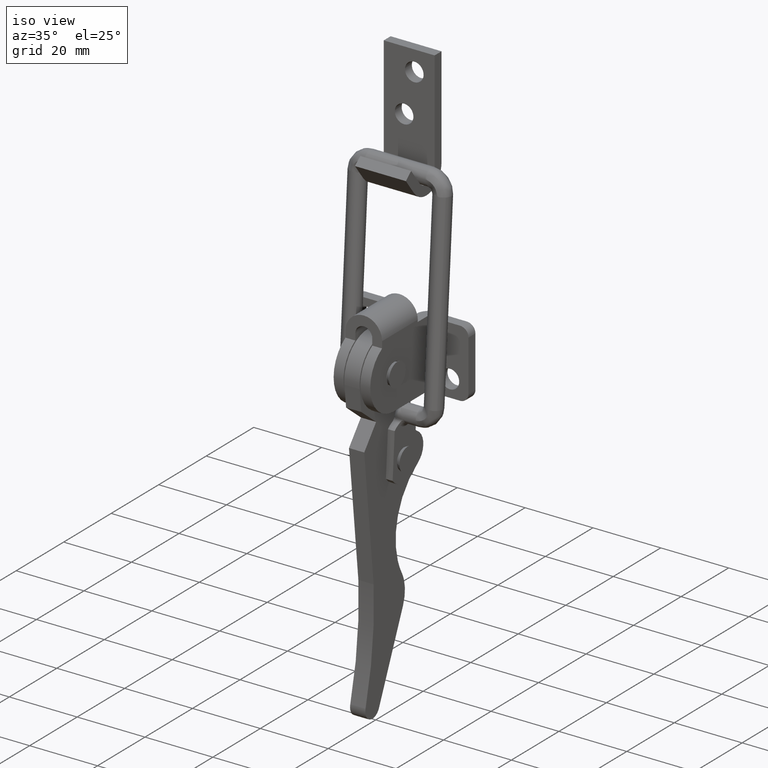
[diagram: clean part render]
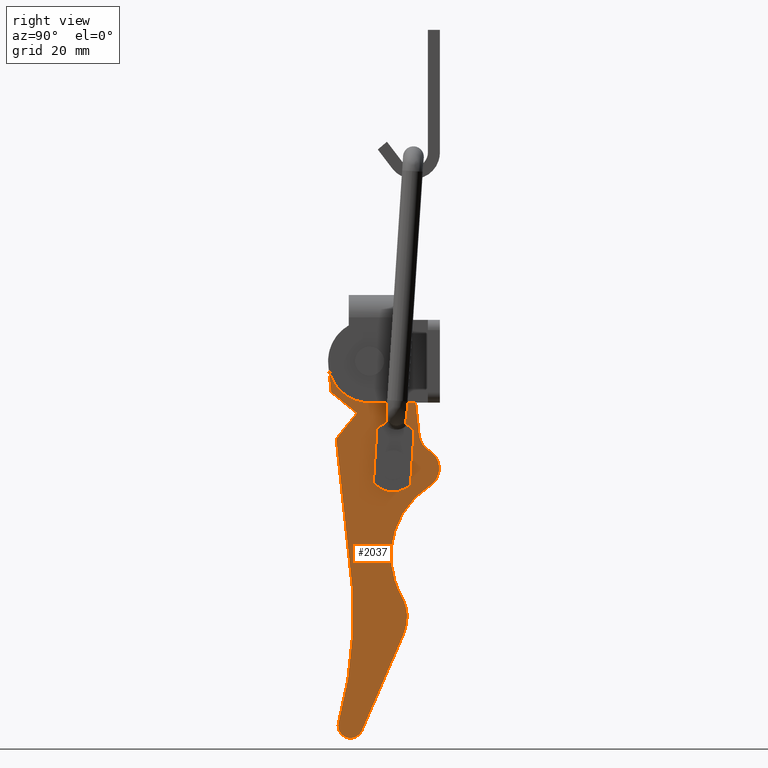
[diagram: tour spotlight — one face highlighted and labeled with its STEP entity id]
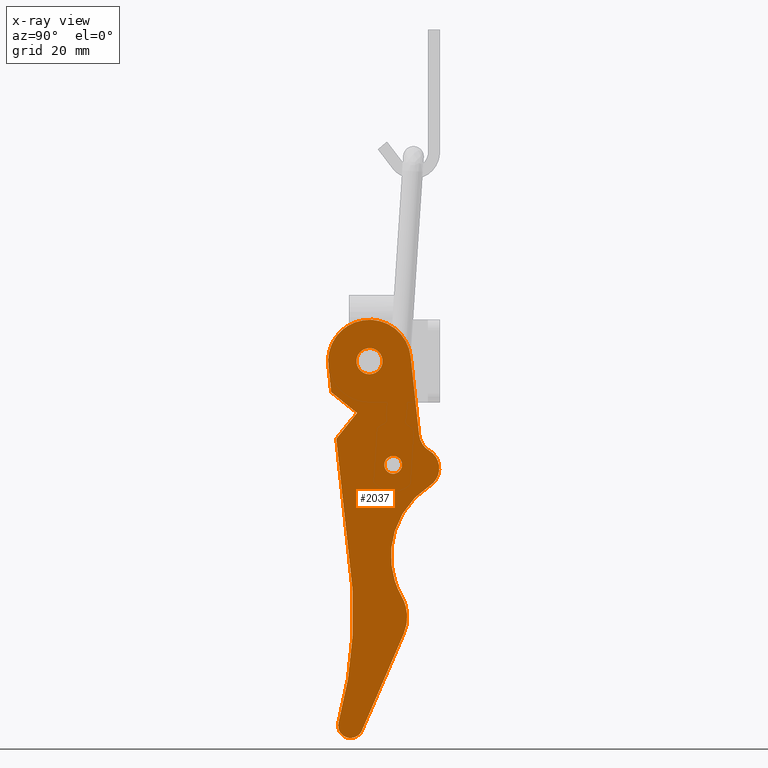
[diagram: x-ray of the same camera — body ghosted, this tour face saturated]
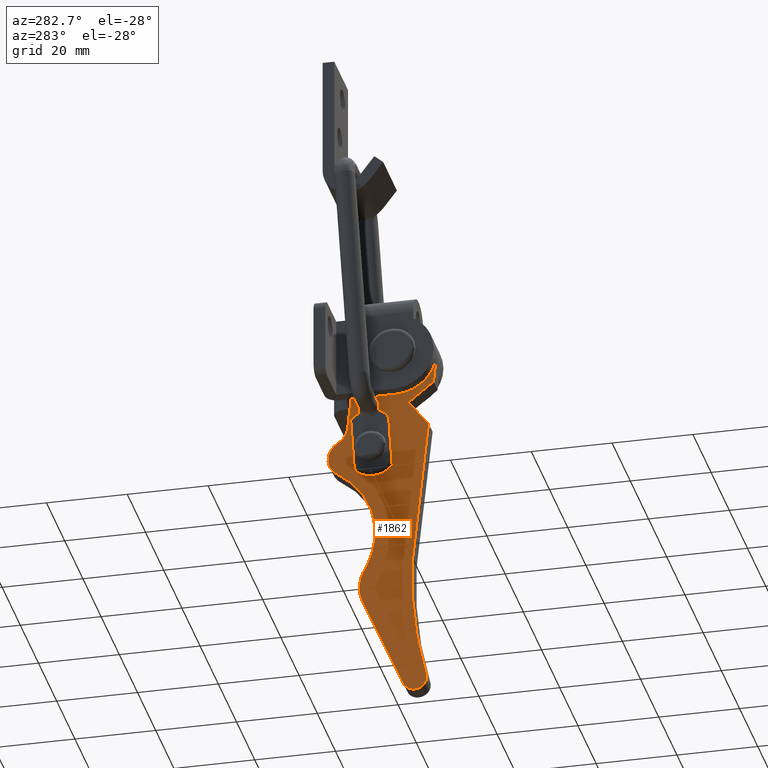
[diagram: tour spotlight — one face highlighted and labeled with its STEP entity id]
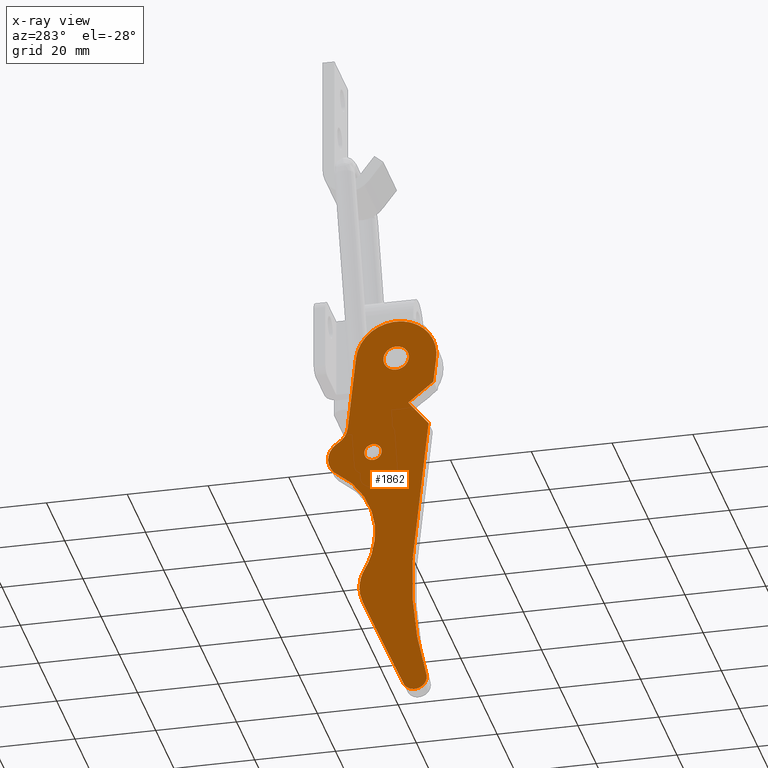
[diagram: x-ray of the same camera — body ghosted, this tour face saturated]
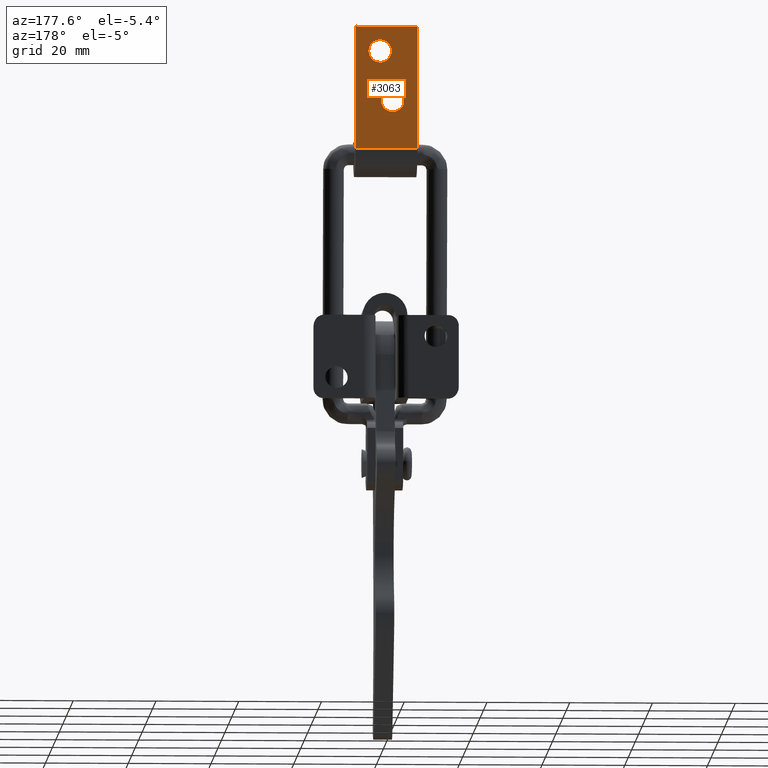
[diagram: tour spotlight — one face highlighted and labeled with its STEP entity id]
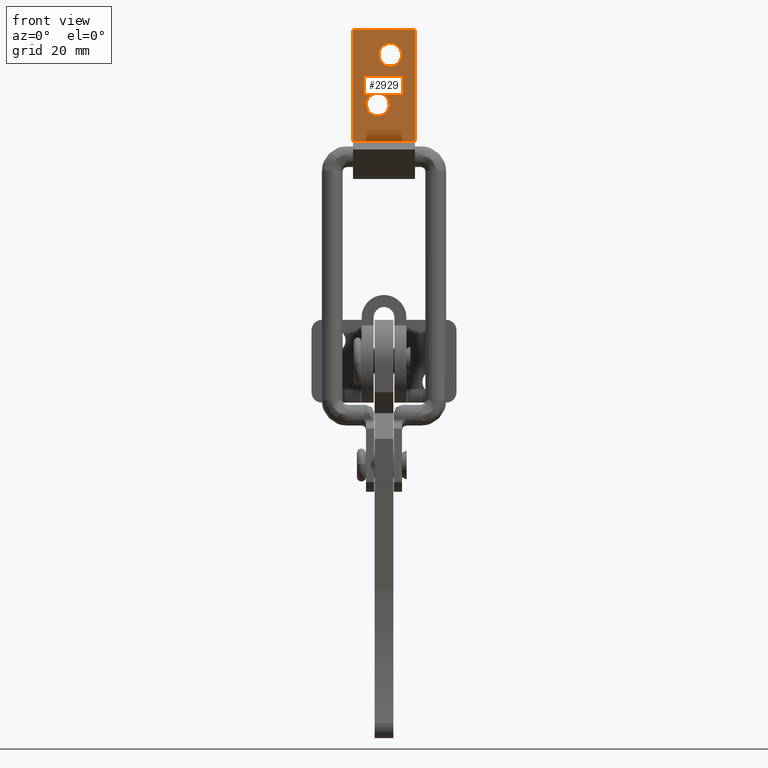
[diagram: tour spotlight — one face highlighted and labeled with its STEP entity id]
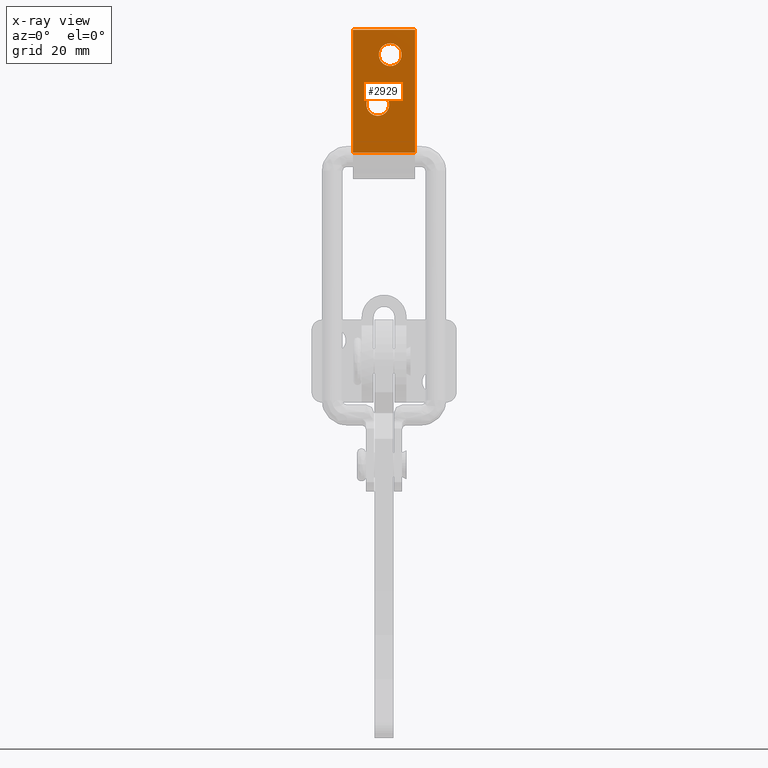
[diagram: x-ray of the same camera — body ghosted, this tour face saturated]
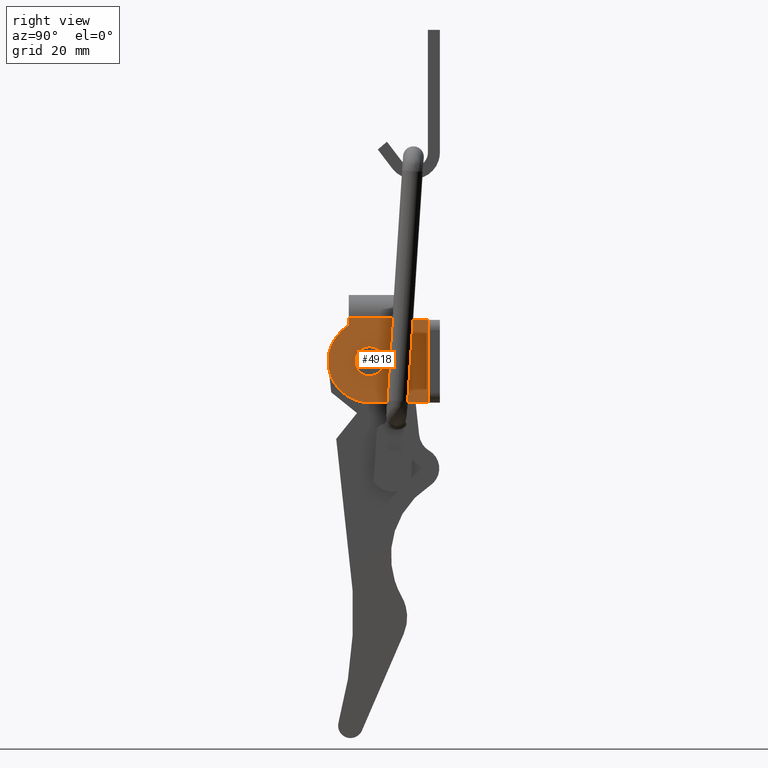
[diagram: tour spotlight — one face highlighted and labeled with its STEP entity id]
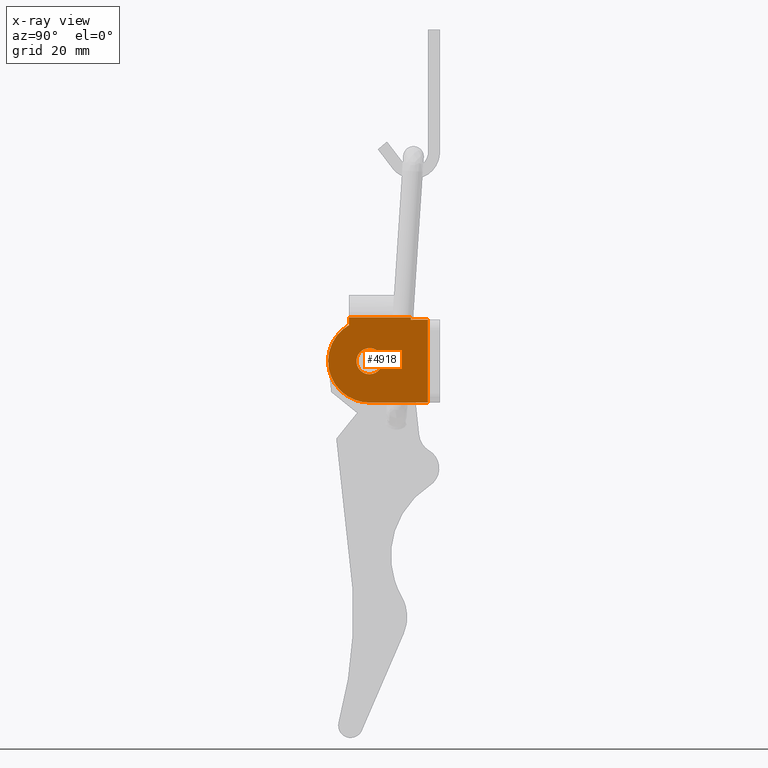
[diagram: x-ray of the same camera — body ghosted, this tour face saturated]
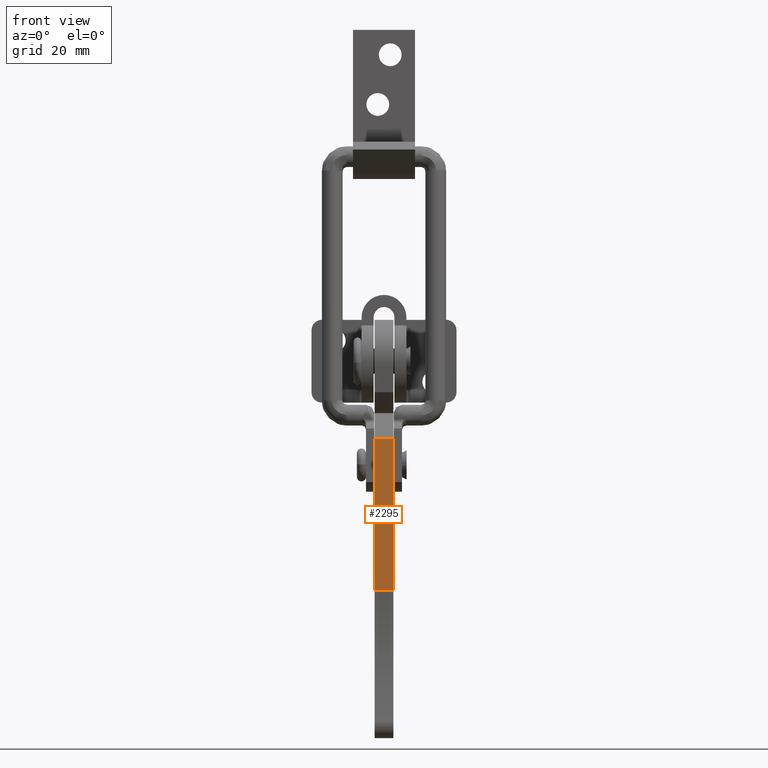
[diagram: tour spotlight — one face highlighted and labeled with its STEP entity id]
A machine part: a face-by-face anatomy tour. The part has 132 B-rep faces; the first image is the clean iso view, then the 6 largest visible faces are spotlighted one at a time (largest first), each with its STEP entity span.

Face 1 — right view, entity #2037. An x-ray twin of the same camera follows (body ghosted, this face saturated) — the face is partly hidden behind the body. In plain terms, the highlighted face is a freeform B-spline surface patch.
Definition (entity closure, byte-faithful):
#1376=CARTESIAN_POINT('',(2.249999999999974,7.862372267415028,-25.199726057228890));
#1377=VERTEX_POINT('',#1376);
#1383=CARTESIAN_POINT('',(2.249999999999975,5.719000000000080,-22.881039000000101));
#1384=VERTEX_POINT('',#1383);
#1385=CARTESIAN_POINT('',(2.249999999999974,7.862372267415028,-25.199726057228887));
#1386=CARTESIAN_POINT('',(2.249999999999975,7.869000000000081,-25.115512731487080));
#1387=CARTESIAN_POINT('',(2.249999999999975,7.869000000000081,-25.031039000000099));
#1388=CARTESIAN_POINT('',(2.249999999999975,7.869000000000081,-22.881039000000101));
#1389=CARTESIAN_POINT('',(2.249999999999975,5.719000000000080,-22.881039000000101));
#1397=(BOUNDED_CURVE()B_SPLINE_CURVE(2,(#1385,#1386,#1387,#1388,#1389),.UNSPECIFIED.,.F.,.U.)B_SPLINE_CURVE_WITH_KNOTS((3,2,3),(0.736331300406599,0.750000000000000,1.0),.UNSPECIFIED.)CURVE()GEOMETRIC_REPRESENTATION_ITEM()RATIONAL_B_SPLINE_CURVE((0.969723355699820,0.983986122316379,1.0,0.707106781186547,1.0))REPRESENTATION_ITEM(''));
#1398=EDGE_CURVE('',#1377,#1384,#1397,.T.);
#1400=CARTESIAN_POINT('',(2.249999999999975,3.575627732585133,-24.862351942771308));
#1401=VERTEX_POINT('',#1400);
#1402=CARTESIAN_POINT('',(2.249999999999975,5.719000000000080,-22.881039000000101));
#1403=CARTESIAN_POINT('',(2.249999999999974,3.731560445565163,-22.881039000000104));
#1404=CARTESIAN_POINT('',(2.249999999999975,3.575627732585133,-24.862351942771308));
#1412=(BOUNDED_CURVE()B_SPLINE_CURVE(2,(#1402,#1403,#1404),.UNSPECIFIED.,.F.,.U.)B_SPLINE_CURVE_WITH_KNOTS((3,3),(0.0,0.236331300406599),.UNSPECIFIED.)CURVE()GEOMETRIC_REPRESENTATION_ITEM()RATIONAL_B_SPLINE_CURVE((1.0,0.723120658870169,0.969723355699820))REPRESENTATION_ITEM(''));
#1413=EDGE_CURVE('',#1384,#1401,#1412,.T.);
#1459=CARTESIAN_POINT('',(2.249999999999975,5.719000000000080,-27.181039000000101));
#1460=VERTEX_POINT('',#1459);
#1461=CARTESIAN_POINT('',(2.249999999999975,3.575627732585134,-24.862351942771312));
#1462=CARTESIAN_POINT('',(2.249999999999975,3.569000000000079,-24.946565268513130));
#1463=CARTESIAN_POINT('',(2.249999999999975,3.569000000000080,-25.031039000000099));
#1464=CARTESIAN_POINT('',(2.249999999999975,3.569000000000079,-27.181039000000094));
#1465=CARTESIAN_POINT('',(2.249999999999975,5.719000000000080,-27.181039000000101));
#1473=(BOUNDED_CURVE()B_SPLINE_CURVE(2,(#1461,#1462,#1463,#1464,#1465),.UNSPECIFIED.,.F.,.U.)B_SPLINE_CURVE_WITH_KNOTS((3,2,3),(0.236331300406599,0.250000000000000,0.500000000000000),.UNSPECIFIED.)CURVE()GEOMETRIC_REPRESENTATION_ITEM()RATIONAL_B_SPLINE_CURVE((0.969723355699820,0.983986122316379,1.0,0.707106781186547,1.0))REPRESENTATION_ITEM(''));
#1474=EDGE_CURVE('',#1401,#1460,#1473,.T.);
#1476=CARTESIAN_POINT('',(2.249999999999975,5.719000000000080,-27.181039000000101));
#1477=CARTESIAN_POINT('',(2.249999999999975,7.706439554434994,-27.181039000000105));
#1478=CARTESIAN_POINT('',(2.249999999999974,7.862372267415028,-25.199726057228894));
#1486=(BOUNDED_CURVE()B_SPLINE_CURVE(2,(#1476,#1477,#1478),.UNSPECIFIED.,.F.,.U.)B_SPLINE_CURVE_WITH_KNOTS((3,3),(0.500000000000000,0.736331300406598),.UNSPECIFIED.)CURVE()GEOMETRIC_REPRESENTATION_ITEM()RATIONAL_B_SPLINE_CURVE((1.0,0.723120658870170,0.969723355699818))REPRESENTATION_ITEM(''));
#1487=EDGE_CURVE('',#1460,#1377,#1486,.T.);
#1558=CARTESIAN_POINT('',(2.249999999999975,3.140289601245991,-0.247146151712488));
#1559=VERTEX_POINT('',#1558);
#1565=CARTESIAN_POINT('',(2.249999999999975,0.0,3.150000000000000));
#1566=VERTEX_POINT('',#1565);
#1567=CARTESIAN_POINT('',(2.249999999999976,3.140289601245991,-0.247146151712488));
#1568=CARTESIAN_POINT('',(2.249999999999974,3.150000000000000,-0.123763837244723));
#1569=CARTESIAN_POINT('',(2.249999999999975,3.150000000000000,0.0));
#1570=CARTESIAN_POINT('',(2.249999999999974,3.149999999999999,3.149999999999999));
#1571=CARTESIAN_POINT('',(2.249999999999975,0.0,3.150000000000000));
#1579=(BOUNDED_CURVE()B_SPLINE_CURVE(2,(#1567,#1568,#1569,#1570,#1571),.UNSPECIFIED.,.F.,.U.)B_SPLINE_CURVE_WITH_KNOTS((3,2,3),(0.736331300614231,0.750000000000000,1.0),.UNSPECIFIED.)CURVE()GEOMETRIC_REPRESENTATION_ITEM()RATIONAL_B_SPLINE_CURVE((0.969723356133133,0.983986122559635,1.0,0.707106781186548,1.0))REPRESENTATION_ITEM(''));
#1580=EDGE_CURVE('',#1559,#1566,#1579,.T.);
#1582=CARTESIAN_POINT('',(2.249999999999974,-3.140289601245991,0.247146151712488));
#1583=VERTEX_POINT('',#1582);
#1584=CARTESIAN_POINT('',(2.249999999999975,0.0,3.150000000000000));
#1585=CARTESIAN_POINT('',(2.249999999999975,-2.911830048407528,3.150000000000000));
#1586=CARTESIAN_POINT('',(2.249999999999974,-3.140289601245991,0.247146151712488));
#1594=(BOUNDED_CURVE()B_SPLINE_CURVE(2,(#1584,#1585,#1586),.UNSPECIFIED.,.F.,.U.)B_SPLINE_CURVE_WITH_KNOTS((3,3),(0.0,0.236331300614231),.UNSPECIFIED.)CURVE()GEOMETRIC_REPRESENTATION_ITEM()RATIONAL_B_SPLINE_CURVE((1.0,0.723120658626913,0.969723356133133))REPRESENTATION_ITEM(''));
#1595=EDGE_CURVE('',#1566,#1583,#1594,.T.);
#1641=CARTESIAN_POINT('',(2.249999999999975,0.0,-3.150000000000000));
#1642=VERTEX_POINT('',#1641);
#1643=CARTESIAN_POINT('',(2.249999999999974,-3.140289601245991,0.247146151712488));
#1644=CARTESIAN_POINT('',(2.249999999999974,-3.150000000000000,0.123763837244723));
#1645=CARTESIAN_POINT('',(2.249999999999975,-3.150000000000000,0.0));
#1646=CARTESIAN_POINT('',(2.249999999999974,-3.149999999999999,-3.149999999999999));
#1647=CARTESIAN_POINT('',(2.249999999999975,0.0,-3.150000000000000));
#1655=(BOUNDED_CURVE()B_SPLINE_CURVE(2,(#1643,#1644,#1645,#1646,#1647),.UNSPECIFIED.,.F.,.U.)B_SPLINE_CURVE_WITH_KNOTS((3,2,3),(0.236331300614231,0.250000000000000,0.500000000000000),.UNSPECIFIED.)CURVE()GEOMETRIC_REPRESENTATION_ITEM()RATIONAL_B_SPLINE_CURVE((0.969723356133133,0.983986122559635,1.0,0.707106781186548,1.0))REPRESENTATION_ITEM(''));
#1656=EDGE_CURVE('',#1583,#1642,#1655,.T.);
#1658=CARTESIAN_POINT('',(2.249999999999975,0.0,-3.150000000000000));
#1659=CARTESIAN_POINT('',(2.249999999999975,2.911830048407543,-3.150000000000000));
#1660=CARTESIAN_POINT('',(2.249999999999976,3.140289601245990,-0.247146151712488));
#1668=(BOUNDED_CURVE()B_SPLINE_CURVE(2,(#1658,#1659,#1660),.UNSPECIFIED.,.F.,.U.)B_SPLINE_CURVE_WITH_KNOTS((3,3),(0.500000000000000,0.736331300614232),.UNSPECIFIED.)CURVE()GEOMETRIC_REPRESENTATION_ITEM()RATIONAL_B_SPLINE_CURVE((1.0,0.723120658626912,0.969723356133135))REPRESENTATION_ITEM(''));
#1669=EDGE_CURVE('',#1642,#1559,#1668,.T.);
#1863=CARTESIAN_POINT('',(2.250000000000000,-11.340386103732399,15.044725175993470));
#1864=CARTESIAN_POINT('',(2.250000000000000,18.185718165359720,15.044725175993470));
#1865=CARTESIAN_POINT('',(2.250000000000000,-11.340386103732399,-96.044500750247309));
#1866=CARTESIAN_POINT('',(2.250000000000000,18.185718165359720,-96.044500750247309));
#1867=B_SPLINE_SURFACE_WITH_KNOTS('',1,1,((#1863,#1865),(#1864,#1866)),.UNSPECIFIED.,.F.,.F.,.U.,(2,2),(2,2),(0.0,29.526104269092109),(0.0,111.089225926240800),.UNSPECIFIED.);
#1868=CARTESIAN_POINT('',(2.249999999999975,-7.477254830264430,-87.209947960264699));
#1869=VERTEX_POINT('',#1868);
#1870=CARTESIAN_POINT('',(2.249999999999975,-4.079169385977215,-55.395696729179903));
#1871=VERTEX_POINT('',#1870);
#1872=CARTESIAN_POINT('',(2.249999999999975,-7.477254830264554,-87.209947960264699));
#1873=CARTESIAN_POINT('',(2.249999999999974,-3.200251024974773,-71.578174795073835));
#1874=CARTESIAN_POINT('',(2.249999999999975,-4.079169385977272,-55.395696729179932));
#1882=(BOUNDED_CURVE()B_SPLINE_CURVE(2,(#1872,#1873,#1874),.UNSPECIFIED.,.F.,.U.)CURVE()GEOMETRIC_REPRESENTATION_ITEM()QUASI_UNIFORM_CURVE()RATIONAL_B_SPLINE_CURVE((1.0,0.987120894747938,1.0))REPRESENTATION_ITEM(''));
#1883=EDGE_CURVE('',#1869,#1871,#1882,.T.);
#1884=ORIENTED_EDGE('',*,*,#1883,.F.);
#1885=CARTESIAN_POINT('',(2.249999999999975,-1.829671798093160,-89.191554858045905));
#1886=VERTEX_POINT('',#1885);
#1887=CARTESIAN_POINT('',(2.249999999999975,-7.477254830264434,-87.209947960264699));
#1888=CARTESIAN_POINT('',(2.249999999999975,-8.215132116914553,-89.906772862406754));
#1889=CARTESIAN_POINT('',(2.249999999999975,-5.576875085987552,-90.832476530829794));
#1890=CARTESIAN_POINT('',(2.249999999999975,-2.938618055060551,-91.758180199252848));
#1891=CARTESIAN_POINT('',(2.249999999999975,-1.829671798093181,-89.191554858045890));
#1899=(BOUNDED_CURVE()B_SPLINE_CURVE(2,(#1887,#1888,#1889,#1890,#1891),.UNSPECIFIED.,.F.,.U.)B_SPLINE_CURVE_WITH_KNOTS((3,2,3),(0.0,0.500000000000000,1.0),.UNSPECIFIED.)CURVE()GEOMETRIC_REPRESENTATION_ITEM()RATIONAL_B_SPLINE_CURVE((1.0,0.731547894364745,1.0,0.731547894364745,1.0))REPRESENTATION_ITEM(''));
#1900=EDGE_CURVE('',#1869,#1886,#1899,.T.);
#1901=ORIENTED_EDGE('',*,*,#1900,.T.);
#1902=CARTESIAN_POINT('',(2.249999999999975,8.280237701830620,-65.792449845708902));
#1903=VERTEX_POINT('',#1902);
#1904=CARTESIAN_POINT('',(2.249999999999975,8.280237701830620,-65.792449845708902));
#1905=CARTESIAN_POINT('',(2.249999999999975,-1.829671798093160,-89.191554858045905));
#1906=QUASI_UNIFORM_CURVE('',1,(#1904,#1905),.UNSPECIFIED.,.F.,.U.);
#1907=EDGE_CURVE('',#1903,#1886,#1906,.T.);
#1908=ORIENTED_EDGE('',*,*,#1907,.F.);
#1909=CARTESIAN_POINT('',(2.249999999999975,7.797290296599839,-56.890125543865601));
#1910=VERTEX_POINT('',#1909);
#1911=CARTESIAN_POINT('',(2.249999999999975,8.280237701830634,-65.792449845708902));
#1912=CARTESIAN_POINT('',(2.249999999999975,10.255380268509965,-61.221037180500034));
#1913=CARTESIAN_POINT('',(2.249999999999975,7.797290296599805,-56.890125543865622));
#1921=(BOUNDED_CURVE()B_SPLINE_CURVE(2,(#1911,#1912,#1913),.UNSPECIFIED.,.F.,.U.)CURVE()GEOMETRIC_REPRESENTATION_ITEM()QUASI_UNIFORM_CURVE()RATIONAL_B_SPLINE_CURVE((1.0,0.895147172017807,1.0))REPRESENTATION_ITEM(''));
#1922=EDGE_CURVE('',#1903,#1910,#1921,.T.);
#1923=ORIENTED_EDGE('',*,*,#1922,.T.);
#1924=CARTESIAN_POINT('',(2.249999999999975,14.514439258647220,-30.106138756003102));
#1925=VERTEX_POINT('',#1924);
#1926=CARTESIAN_POINT('',(2.249999999999975,14.514439258647210,-30.106138756003091));
#1927=CARTESIAN_POINT('',(2.249999999999975,-1.622457926183717,-40.293459978968293));
#1928=CARTESIAN_POINT('',(2.249999999999975,7.797290296599847,-56.890125543865587));
#1936=(BOUNDED_CURVE()B_SPLINE_CURVE(2,(#1926,#1927,#1928),.UNSPECIFIED.,.F.,.U.)CURVE()GEOMETRIC_REPRESENTATION_ITEM()QUASI_UNIFORM_CURVE()RATIONAL_B_SPLINE_CURVE((1.0,0.723488925955882,1.0))REPRESENTATION_ITEM(''));
#1937=EDGE_CURVE('',#1925,#1910,#1936,.T.);
#1938=ORIENTED_EDGE('',*,*,#1937,.F.);
#1939=CARTESIAN_POINT('',(2.249999999999975,14.399149536654560,-21.579586722501951));
#1940=VERTEX_POINT('',#1939);
#1941=CARTESIAN_POINT('',(2.249999999999975,14.514439258647210,-30.106138756003080));
#1942=CARTESIAN_POINT('',(2.249999999999974,16.882707862522917,-28.611036399360170));
#1943=CARTESIAN_POINT('',(2.249999999999975,16.844842074830272,-25.810573327104969));
#1944=CARTESIAN_POINT('',(2.249999999999974,16.806976287137605,-23.010110254849764));
#1945=CARTESIAN_POINT('',(2.249999999999975,14.399149536654569,-21.579586722501940));
#1953=(BOUNDED_CURVE()B_SPLINE_CURVE(2,(#1941,#1942,#1943,#1944,#1945),.UNSPECIFIED.,.F.,.U.)B_SPLINE_CURVE_WITH_KNOTS((3,2,3),(0.0,0.500000000000000,1.0),.UNSPECIFIED.)CURVE()GEOMETRIC_REPRESENTATION_ITEM()RATIONAL_B_SPLINE_CURVE((1.0,0.872452522263426,1.0,0.872452522263426,1.0))REPRESENTATION_ITEM(''));
#1954=EDGE_CURVE('',#1925,#1940,#1953,.T.);
#1955=ORIENTED_EDGE('',*,*,#1954,.T.);
#1956=CARTESIAN_POINT('',(2.249999999999975,11.977447328145100,-17.774837634852449));
#1957=VERTEX_POINT('',#1956);
#1958=CARTESIAN_POINT('',(2.249999999999975,11.977447328145100,-17.774837634852449));
#1959=CARTESIAN_POINT('',(2.249999999999975,12.226992777752791,-20.289078026669177));
#1960=CARTESIAN_POINT('',(2.249999999999975,14.399149536654550,-21.579586722501968));
#1968=(BOUNDED_CURVE()B_SPLINE_CURVE(2,(#1958,#1959,#1960),.UNSPECIFIED.,.F.,.U.)CURVE()GEOMETRIC_REPRESENTATION_ITEM()QUASI_UNIFORM_CURVE()RATIONAL_B_SPLINE_CURVE((1.0,0.892520267519625,1.0))REPRESENTATION_ITEM(''));
#1969=EDGE_CURVE('',#1957,#1940,#1968,.T.);
#1970=ORIENTED_EDGE('',*,*,#1969,.F.);
#1971=CARTESIAN_POINT('',(2.249999999999975,9.942207011865571,1.073554718312516));
#1972=VERTEX_POINT('',#1971);
#1973=CARTESIAN_POINT('',(2.249999999999975,9.942207011865571,1.073554718312516));
#1974=CARTESIAN_POINT('',(2.249999999999975,11.977447328145100,-17.774837634852449));
#1975=QUASI_UNIFORM_CURVE('',1,(#1973,#1974),.UNSPECIFIED.,.F.,.U.);
#1976=EDGE_CURVE('',#1972,#1957,#1975,.T.);
#1977=ORIENTED_EDGE('',*,*,#1976,.F.);
#1978=CARTESIAN_POINT('',(2.249999999999975,-9.934119438738980,-1.145980356231412));
#1979=VERTEX_POINT('',#1978);
#1980=CARTESIAN_POINT('',(2.249999999999975,9.942207011865571,1.073554718312515));
#1981=CARTESIAN_POINT('',(2.249999999999975,9.320650100266494,6.829802983410197));
#1982=CARTESIAN_POINT('',(2.249999999999975,4.019146111109745,9.156771512795949));
#1983=CARTESIAN_POINT('',(2.249999999999975,-1.282357878047006,11.483740042181706));
#1984=CARTESIAN_POINT('',(2.249999999999975,-5.939983281569741,8.044662740890509));
#1985=CARTESIAN_POINT('',(2.249999999999975,-10.597608685092476,4.605585439599312));
#1986=CARTESIAN_POINT('',(2.249999999999975,-9.934119438738982,-1.145980356231412));
#1994=(BOUNDED_CURVE()B_SPLINE_CURVE(2,(#1980,#1981,#1982,#1983,#1984,#1985,#1986),.UNSPECIFIED.,.F.,.U.)B_SPLINE_CURVE_WITH_KNOTS((3,2,2,3),(0.0,0.333333333333333,0.666666666666667,1.0),.UNSPECIFIED.)CURVE()GEOMETRIC_REPRESENTATION_ITEM()RATIONAL_B_SPLINE_CURVE((1.0,0.865417465474494,1.0,0.865417465474494,1.0,0.865417465474494,1.0))REPRESENTATION_ITEM(''));
#1995=EDGE_CURVE('',#1972,#1979,#1994,.T.);
#1996=ORIENTED_EDGE('',*,*,#1995,.T.);
#1997=CARTESIAN_POINT('',(2.249999999999975,-9.247999999999999,-7.500000000000000));
#1998=VERTEX_POINT('',#1997);
#1999=CARTESIAN_POINT('',(2.249999999999975,-9.247999999999999,-7.500000000000000));
#2000=CARTESIAN_POINT('',(2.249999999999975,-9.934119438738980,-1.145980356231412));
#2001=QUASI_UNIFORM_CURVE('',1,(#1999,#2000),.UNSPECIFIED.,.F.,.U.);
#2002=EDGE_CURVE('',#1998,#1979,#2001,.T.);
#2003=ORIENTED_EDGE('',*,*,#2002,.F.);
#2004=CARTESIAN_POINT('',(2.249999999999975,-3.016999999999910,-12.516999999999999));
#2005=VERTEX_POINT('',#2004);
#2006=CARTESIAN_POINT('',(2.249999999999975,-3.016999999999910,-12.516999999999999));
#2007=CARTESIAN_POINT('',(2.249999999999975,-9.247999999999999,-7.500000000000000));
#2008=QUASI_UNIFORM_CURVE('',1,(#2006,#2007),.UNSPECIFIED.,.F.,.U.);
#2009=EDGE_CURVE('',#2005,#1998,#2008,.T.);
#2010=ORIENTED_EDGE('',*,*,#2009,.F.);
#2011=CARTESIAN_POINT('',(2.249999999999975,-8.033999999999912,-18.748999999999999));
#2012=VERTEX_POINT('',#2011);
#2013=CARTESIAN_POINT('',(2.249999999999975,-8.033999999999912,-18.748999999999999));
#2014=CARTESIAN_POINT('',(2.249999999999975,-3.016999999999910,-12.516999999999999));
#2015=QUASI_UNIFORM_CURVE('',1,(#2013,#2014),.UNSPECIFIED.,.F.,.U.);
#2016=EDGE_CURVE('',#2012,#2005,#2015,.T.);
#2017=ORIENTED_EDGE('',*,*,#2016,.F.);
#2018=CARTESIAN_POINT('',(2.249999999999975,-4.079169385977215,-55.395696729179903));
#2019=CARTESIAN_POINT('',(2.249999999999975,-8.033999999999912,-18.748999999999999));
#2020=QUASI_UNIFORM_CURVE('',1,(#2018,#2019),.UNSPECIFIED.,.F.,.U.);
#2021=EDGE_CURVE('',#1871,#2012,#2020,.T.);
#2022=ORIENTED_EDGE('',*,*,#2021,.F.);
#2023=EDGE_LOOP('',(#1884,#1901,#1908,#1923,#1938,#1955,#1970,#1977,#1996,#2003,#2010,#2017,#2022));
#2024=FACE_OUTER_BOUND('',#2023,.T.);
#2025=ORIENTED_EDGE('',*,*,#1669,.F.);
#2026=ORIENTED_EDGE('',*,*,#1656,.F.);
#2027=ORIENTED_EDGE('',*,*,#1595,.F.);
#2028=ORIENTED_EDGE('',*,*,#1580,.F.);
#2029=EDGE_LOOP('',(#2025,#2026,#2027,#2028));
#2030=FACE_BOUND('',#2029,.T.);
#2031=ORIENTED_EDGE('',*,*,#1487,.F.);
#2032=ORIENTED_EDGE('',*,*,#1474,.F.);
#2033=ORIENTED_EDGE('',*,*,#1413,.F.);
#2034=ORIENTED_EDGE('',*,*,#1398,.F.);
#2035=EDGE_LOOP('',(#2031,#2032,#2033,#2034));
#2036=FACE_BOUND('',#2035,.T.);
#2037=ADVANCED_FACE('',(#2024,#2030,#2036),#1867,.F.);

Face 2 — auxiliary view, entity #1862. An x-ray twin of the same camera follows (body ghosted, this face saturated) — the face is partly hidden behind the body. In plain terms, the highlighted face is a freeform B-spline surface patch.
Definition (entity closure, byte-faithful):
#1342=CARTESIAN_POINT('',(-2.249999999999975,5.719000000000080,-22.881039000000101));
#1343=VERTEX_POINT('',#1342);
#1344=CARTESIAN_POINT('',(-2.249999999999975,3.575627732585133,-24.862351942771319));
#1345=VERTEX_POINT('',#1344);
#1346=CARTESIAN_POINT('',(-2.249999999999975,5.719000000000080,-22.881039000000101));
#1347=CARTESIAN_POINT('',(-2.249999999999975,3.731560445565156,-22.881039000000104));
#1348=CARTESIAN_POINT('',(-2.249999999999976,3.575627732585133,-24.862351942771316));
#1356=(BOUNDED_CURVE()B_SPLINE_CURVE(2,(#1346,#1347,#1348),.UNSPECIFIED.,.F.,.U.)B_SPLINE_CURVE_WITH_KNOTS((3,3),(0.0,0.236331300406599),.UNSPECIFIED.)CURVE()GEOMETRIC_REPRESENTATION_ITEM()RATIONAL_B_SPLINE_CURVE((1.0,0.723120658870169,0.969723355699821))REPRESENTATION_ITEM(''));
#1357=EDGE_CURVE('',#1343,#1345,#1356,.T.);
#1359=CARTESIAN_POINT('',(-2.249999999999975,7.862372267415028,-25.199726057228890));
#1360=VERTEX_POINT('',#1359);
#1361=CARTESIAN_POINT('',(-2.249999999999976,7.862372267415028,-25.199726057228887));
#1362=CARTESIAN_POINT('',(-2.249999999999975,7.869000000000081,-25.115512731487080));
#1363=CARTESIAN_POINT('',(-2.249999999999975,7.869000000000081,-25.031039000000099));
#1364=CARTESIAN_POINT('',(-2.249999999999975,7.869000000000081,-22.881039000000101));
#1365=CARTESIAN_POINT('',(-2.249999999999975,5.719000000000080,-22.881039000000101));
#1373=(BOUNDED_CURVE()B_SPLINE_CURVE(2,(#1361,#1362,#1363,#1364,#1365),.UNSPECIFIED.,.F.,.U.)B_SPLINE_CURVE_WITH_KNOTS((3,2,3),(0.736331300406599,0.750000000000000,1.0),.UNSPECIFIED.)CURVE()GEOMETRIC_REPRESENTATION_ITEM()RATIONAL_B_SPLINE_CURVE((0.969723355699820,0.983986122316379,1.0,0.707106781186547,1.0))REPRESENTATION_ITEM(''));
#1374=EDGE_CURVE('',#1360,#1343,#1373,.T.);
#1441=CARTESIAN_POINT('',(-2.249999999999975,5.719000000000080,-27.181039000000101));
#1442=VERTEX_POINT('',#1441);
#1443=CARTESIAN_POINT('',(-2.249999999999976,3.575627732585134,-24.862351942771316));
#1444=CARTESIAN_POINT('',(-2.249999999999974,3.569000000000079,-24.946565268513130));
#1445=CARTESIAN_POINT('',(-2.249999999999975,3.569000000000080,-25.031039000000099));
#1446=CARTESIAN_POINT('',(-2.249999999999975,3.569000000000079,-27.181039000000094));
#1447=CARTESIAN_POINT('',(-2.249999999999975,5.719000000000080,-27.181039000000101));
#1455=(BOUNDED_CURVE()B_SPLINE_CURVE(2,(#1443,#1444,#1445,#1446,#1447),.UNSPECIFIED.,.F.,.U.)B_SPLINE_CURVE_WITH_KNOTS((3,2,3),(0.236331300406599,0.250000000000000,0.500000000000000),.UNSPECIFIED.)CURVE()GEOMETRIC_REPRESENTATION_ITEM()RATIONAL_B_SPLINE_CURVE((0.969723355699821,0.983986122316379,1.0,0.707106781186547,1.0))REPRESENTATION_ITEM(''));
#1456=EDGE_CURVE('',#1345,#1442,#1455,.T.);
#1490=CARTESIAN_POINT('',(-2.249999999999975,5.719000000000080,-27.181039000000101));
#1491=CARTESIAN_POINT('',(-2.249999999999975,7.706439554434994,-27.181039000000105));
#1492=CARTESIAN_POINT('',(-2.249999999999975,7.862372267415028,-25.199726057228894));
#1500=(BOUNDED_CURVE()B_SPLINE_CURVE(2,(#1490,#1491,#1492),.UNSPECIFIED.,.F.,.U.)B_SPLINE_CURVE_WITH_KNOTS((3,3),(0.500000000000000,0.736331300406598),.UNSPECIFIED.)CURVE()GEOMETRIC_REPRESENTATION_ITEM()RATIONAL_B_SPLINE_CURVE((1.0,0.723120658870170,0.969723355699818))REPRESENTATION_ITEM(''));
#1501=EDGE_CURVE('',#1442,#1360,#1500,.T.);
#1524=CARTESIAN_POINT('',(-2.249999999999975,0.0,3.150000000000000));
#1525=VERTEX_POINT('',#1524);
#1526=CARTESIAN_POINT('',(-2.249999999999975,-3.140289601245991,0.247146151712488));
#1527=VERTEX_POINT('',#1526);
#1528=CARTESIAN_POINT('',(-2.249999999999975,0.0,3.150000000000000));
#1529=CARTESIAN_POINT('',(-2.249999999999975,-2.911830048407532,3.150000000000000));
#1530=CARTESIAN_POINT('',(-2.249999999999975,-3.140289601245991,0.247146151712488));
#1538=(BOUNDED_CURVE()B_SPLINE_CURVE(2,(#1528,#1529,#1530),.UNSPECIFIED.,.F.,.U.)B_SPLINE_CURVE_WITH_KNOTS((3,3),(0.0,0.236331300614231),.UNSPECIFIED.)CURVE()GEOMETRIC_REPRESENTATION_ITEM()RATIONAL_B_SPLINE_CURVE((1.0,0.723120658626913,0.969723356133133))REPRESENTATION_ITEM(''));
#1539=EDGE_CURVE('',#1525,#1527,#1538,.T.);
#1541=CARTESIAN_POINT('',(-2.249999999999975,3.140289601245991,-0.247146151712488));
#1542=VERTEX_POINT('',#1541);
#1543=CARTESIAN_POINT('',(-2.249999999999976,3.140289601245991,-0.247146151712488));
#1544=CARTESIAN_POINT('',(-2.249999999999974,3.150000000000000,-0.123763837244723));
#1545=CARTESIAN_POINT('',(-2.249999999999975,3.150000000000000,0.0));
#1546=CARTESIAN_POINT('',(-2.249999999999974,3.149999999999999,3.149999999999999));
#1547=CARTESIAN_POINT('',(-2.249999999999975,0.0,3.150000000000000));
#1555=(BOUNDED_CURVE()B_SPLINE_CURVE(2,(#1543,#1544,#1545,#1546,#1547),.UNSPECIFIED.,.F.,.U.)B_SPLINE_CURVE_WITH_KNOTS((3,2,3),(0.736331300614231,0.750000000000000,1.0),.UNSPECIFIED.)CURVE()GEOMETRIC_REPRESENTATION_ITEM()RATIONAL_B_SPLINE_CURVE((0.969723356133133,0.983986122559635,1.0,0.707106781186548,1.0))REPRESENTATION_ITEM(''));
#1556=EDGE_CURVE('',#1542,#1525,#1555,.T.);
#1623=CARTESIAN_POINT('',(-2.249999999999975,0.0,-3.150000000000000));
#1624=VERTEX_POINT('',#1623);
#1625=CARTESIAN_POINT('',(-2.249999999999976,-3.140289601245991,0.247146151712488));
#1626=CARTESIAN_POINT('',(-2.249999999999974,-3.150000000000000,0.123763837244723));
#1627=CARTESIAN_POINT('',(-2.249999999999975,-3.150000000000000,0.0));
#1628=CARTESIAN_POINT('',(-2.249999999999974,-3.149999999999999,-3.149999999999999));
#1629=CARTESIAN_POINT('',(-2.249999999999975,0.0,-3.150000000000000));
#1637=(BOUNDED_CURVE()B_SPLINE_CURVE(2,(#1625,#1626,#1627,#1628,#1629),.UNSPECIFIED.,.F.,.U.)B_SPLINE_CURVE_WITH_KNOTS((3,2,3),(0.236331300614231,0.250000000000000,0.500000000000000),.UNSPECIFIED.)CURVE()GEOMETRIC_REPRESENTATION_ITEM()RATIONAL_B_SPLINE_CURVE((0.969723356133133,0.983986122559635,1.0,0.707106781186548,1.0))REPRESENTATION_ITEM(''));
#1638=EDGE_CURVE('',#1527,#1624,#1637,.T.);
#1672=CARTESIAN_POINT('',(-2.249999999999975,0.0,-3.150000000000000));
#1673=CARTESIAN_POINT('',(-2.249999999999975,2.911830048407543,-3.150000000000000));
#1674=CARTESIAN_POINT('',(-2.249999999999976,3.140289601245990,-0.247146151712488));
#1682=(BOUNDED_CURVE()B_SPLINE_CURVE(2,(#1672,#1673,#1674),.UNSPECIFIED.,.F.,.U.)B_SPLINE_CURVE_WITH_KNOTS((3,3),(0.500000000000000,0.736331300614232),.UNSPECIFIED.)CURVE()GEOMETRIC_REPRESENTATION_ITEM()RATIONAL_B_SPLINE_CURVE((1.0,0.723120658626912,0.969723356133135))REPRESENTATION_ITEM(''));
#1683=EDGE_CURVE('',#1624,#1542,#1682,.T.);
#1688=CARTESIAN_POINT('',(-2.250000000000000,-11.340386103732399,15.044725175993470));
#1689=CARTESIAN_POINT('',(-2.250000000000000,18.185718165359720,15.044725175993470));
#1690=CARTESIAN_POINT('',(-2.250000000000000,-11.340386103732399,-96.044500750247309));
#1691=CARTESIAN_POINT('',(-2.250000000000000,18.185718165359720,-96.044500750247309));
#1692=B_SPLINE_SURFACE_WITH_KNOTS('',1,1,((#1688,#1690),(#1689,#1691)),.UNSPECIFIED.,.F.,.F.,.U.,(2,2),(2,2),(0.0,29.526104269092109),(0.0,111.089225926240800),.UNSPECIFIED.);
#1693=CARTESIAN_POINT('',(-2.249999999999975,-7.477254830264430,-87.209947960264699));
#1694=VERTEX_POINT('',#1693);
#1695=CARTESIAN_POINT('',(-2.249999999999975,-4.079169385977215,-55.395696729179903));
#1696=VERTEX_POINT('',#1695);
#1697=CARTESIAN_POINT('',(-2.249999999999975,-7.477254830264554,-87.209947960264699));
#1698=CARTESIAN_POINT('',(-2.249999999999974,-3.200251024974773,-71.578174795073835));
#1699=CARTESIAN_POINT('',(-2.249999999999975,-4.079169385977272,-55.395696729179932));
#1707=(BOUNDED_CURVE()B_SPLINE_CURVE(2,(#1697,#1698,#1699),.UNSPECIFIED.,.F.,.U.)CURVE()GEOMETRIC_REPRESENTATION_ITEM()QUASI_UNIFORM_CURVE()RATIONAL_B_SPLINE_CURVE((1.0,0.987120894747938,1.0))REPRESENTATION_ITEM(''));
#1708=EDGE_CURVE('',#1694,#1696,#1707,.T.);
#1709=ORIENTED_EDGE('',*,*,#1708,.T.);
#1710=CARTESIAN_POINT('',(-2.249999999999975,-8.033999999999912,-18.748999999999999));
#1711=VERTEX_POINT('',#1710);
#1712=CARTESIAN_POINT('',(-2.249999999999975,-4.079169385977215,-55.395696729179903));
#1713=CARTESIAN_POINT('',(-2.249999999999975,-8.033999999999912,-18.748999999999999));
#1714=QUASI_UNIFORM_CURVE('',1,(#1712,#1713),.UNSPECIFIED.,.F.,.U.);
#1715=EDGE_CURVE('',#1696,#1711,#1714,.T.);
#1716=ORIENTED_EDGE('',*,*,#1715,.T.);
#1717=CARTESIAN_POINT('',(-2.249999999999975,-3.016999999999910,-12.516999999999999));
#1718=VERTEX_POINT('',#1717);
#1719=CARTESIAN_POINT('',(-2.249999999999975,-8.033999999999912,-18.748999999999999));
#1720=CARTESIAN_POINT('',(-2.249999999999975,-3.016999999999910,-12.516999999999999));
#1721=QUASI_UNIFORM_CURVE('',1,(#1719,#1720),.UNSPECIFIED.,.F.,.U.);
#1722=EDGE_CURVE('',#1711,#1718,#1721,.T.);
#1723=ORIENTED_EDGE('',*,*,#1722,.T.);
#1724=CARTESIAN_POINT('',(-2.249999999999975,-9.247999999999999,-7.500000000000000));
#1725=VERTEX_POINT('',#1724);
#1726=CARTESIAN_POINT('',(-2.249999999999975,-3.016999999999910,-12.516999999999999));
#1727=CARTESIAN_POINT('',(-2.249999999999975,-9.247999999999999,-7.500000000000000));
#1728=QUASI_UNIFORM_CURVE('',1,(#1726,#1727),.UNSPECIFIED.,.F.,.U.);
#1729=EDGE_CURVE('',#1718,#1725,#1728,.T.);
#1730=ORIENTED_EDGE('',*,*,#1729,.T.);
#1731=CARTESIAN_POINT('',(-2.249999999999975,-9.934119438738980,-1.145980356231412));
#1732=VERTEX_POINT('',#1731);
#1733=CARTESIAN_POINT('',(-2.249999999999975,-9.247999999999999,-7.500000000000000));
#1734=CARTESIAN_POINT('',(-2.249999999999975,-9.934119438738980,-1.145980356231412));
#1735=QUASI_UNIFORM_CURVE('',1,(#1733,#1734),.UNSPECIFIED.,.F.,.U.);
#1736=EDGE_CURVE('',#1725,#1732,#1735,.T.);
#1737=ORIENTED_EDGE('',*,*,#1736,.T.);
#1738=CARTESIAN_POINT('',(-2.249999999999975,9.942207011865571,1.073554718312516));
#1739=VERTEX_POINT('',#1738);
#1740=CARTESIAN_POINT('',(-2.249999999999975,9.942207011865571,1.073554718312515));
#1741=CARTESIAN_POINT('',(-2.249999999999975,9.320650100266494,6.829802983410197));
#1742=CARTESIAN_POINT('',(-2.249999999999975,4.019146111109745,9.156771512795949));
#1743=CARTESIAN_POINT('',(-2.249999999999975,-1.282357878047006,11.483740042181706));
#1744=CARTESIAN_POINT('',(-2.249999999999975,-5.939983281569741,8.044662740890509));
#1745=CARTESIAN_POINT('',(-2.249999999999975,-10.597608685092476,4.605585439599312));
#1746=CARTESIAN_POINT('',(-2.249999999999975,-9.934119438738982,-1.145980356231412));
#1754=(BOUNDED_CURVE()B_SPLINE_CURVE(2,(#1740,#1741,#1742,#1743,#1744,#1745,#1746),.UNSPECIFIED.,.F.,.U.)B_SPLINE_CURVE_WITH_KNOTS((3,2,2,3),(0.0,0.333333333333333,0.666666666666667,1.0),.UNSPECIFIED.)CURVE()GEOMETRIC_REPRESENTATION_ITEM()RATIONAL_B_SPLINE_CURVE((1.0,0.865417465474494,1.0,0.865417465474494,1.0,0.865417465474494,1.0))REPRESENTATION_ITEM(''));
#1755=EDGE_CURVE('',#1739,#1732,#1754,.T.);
#1756=ORIENTED_EDGE('',*,*,#1755,.F.);
#1757=CARTESIAN_POINT('',(-2.249999999999975,11.977447328145100,-17.774837634852449));
#1758=VERTEX_POINT('',#1757);
#1759=CARTESIAN_POINT('',(-2.249999999999975,9.942207011865571,1.073554718312516));
#1760=CARTESIAN_POINT('',(-2.249999999999975,11.977447328145100,-17.774837634852449));
#1761=QUASI_UNIFORM_CURVE('',1,(#1759,#1760),.UNSPECIFIED.,.F.,.U.);
#1762=EDGE_CURVE('',#1739,#1758,#1761,.T.);
#1763=ORIENTED_EDGE('',*,*,#1762,.T.);
#1764=CARTESIAN_POINT('',(-2.249999999999975,14.399149536654560,-21.579586722501951));
#1765=VERTEX_POINT('',#1764);
#1766=CARTESIAN_POINT('',(-2.249999999999975,11.977447328145100,-17.774837634852449));
#1767=CARTESIAN_POINT('',(-2.249999999999975,12.226992777752791,-20.289078026669177));
#1768=CARTESIAN_POINT('',(-2.249999999999975,14.399149536654550,-21.579586722501968));
#1776=(BOUNDED_CURVE()B_SPLINE_CURVE(2,(#1766,#1767,#1768),.UNSPECIFIED.,.F.,.U.)CURVE()GEOMETRIC_REPRESENTATION_ITEM()QUASI_UNIFORM_CURVE()RATIONAL_B_SPLINE_CURVE((1.0,0.892520267519625,1.0))REPRESENTATION_ITEM(''));
#1777=EDGE_CURVE('',#1758,#1765,#1776,.T.);
#1778=ORIENTED_EDGE('',*,*,#1777,.T.);
#1779=CARTESIAN_POINT('',(-2.249999999999975,14.514439258647220,-30.106138756003102));
#1780=VERTEX_POINT('',#1779);
#1781=CARTESIAN_POINT('',(-2.249999999999975,14.514439258647210,-30.106138756003080));
#1782=CARTESIAN_POINT('',(-2.249999999999974,16.882707862522917,-28.611036399360170));
#1783=CARTESIAN_POINT('',(-2.249999999999975,16.844842074830272,-25.810573327104969));
#1784=CARTESIAN_POINT('',(-2.249999999999974,16.806976287137605,-23.010110254849764));
#1785=CARTESIAN_POINT('',(-2.249999999999975,14.399149536654569,-21.579586722501940));
#1793=(BOUNDED_CURVE()B_SPLINE_CURVE(2,(#1781,#1782,#1783,#1784,#1785),.UNSPECIFIED.,.F.,.U.)B_SPLINE_CURVE_WITH_KNOTS((3,2,3),(0.0,0.500000000000000,1.0),.UNSPECIFIED.)CURVE()GEOMETRIC_REPRESENTATION_ITEM()RATIONAL_B_SPLINE_CURVE((1.0,0.872452522263426,1.0,0.872452522263426,1.0))REPRESENTATION_ITEM(''));
#1794=EDGE_CURVE('',#1780,#1765,#1793,.T.);
#1795=ORIENTED_EDGE('',*,*,#1794,.F.);
#1796=CARTESIAN_POINT('',(-2.249999999999975,7.797290296599839,-56.890125543865601));
#1797=VERTEX_POINT('',#1796);
#1798=CARTESIAN_POINT('',(-2.249999999999975,14.514439258647210,-30.106138756003091));
#1799=CARTESIAN_POINT('',(-2.249999999999975,-1.622457926183717,-40.293459978968293));
#1800=CARTESIAN_POINT('',(-2.249999999999975,7.797290296599847,-56.890125543865587));
#1808=(BOUNDED_CURVE()B_SPLINE_CURVE(2,(#1798,#1799,#1800),.UNSPECIFIED.,.F.,.U.)CURVE()GEOMETRIC_REPRESENTATION_ITEM()QUASI_UNIFORM_CURVE()RATIONAL_B_SPLINE_CURVE((1.0,0.723488925955882,1.0))REPRESENTATION_ITEM(''));
#1809=EDGE_CURVE('',#1780,#1797,#1808,.T.);
#1810=ORIENTED_EDGE('',*,*,#1809,.T.);
#1811=CARTESIAN_POINT('',(-2.249999999999975,8.280237701830620,-65.792449845708902));
#1812=VERTEX_POINT('',#1811);
#1813=CARTESIAN_POINT('',(-2.249999999999975,8.280237701830634,-65.792449845708902));
#1814=CARTESIAN_POINT('',(-2.249999999999975,10.255380268509965,-61.221037180500034));
#1815=CARTESIAN_POINT('',(-2.249999999999975,7.797290296599805,-56.890125543865622));
#1823=(BOUNDED_CURVE()B_SPLINE_CURVE(2,(#1813,#1814,#1815),.UNSPECIFIED.,.F.,.U.)CURVE()GEOMETRIC_REPRESENTATION_ITEM()QUASI_UNIFORM_CURVE()RATIONAL_B_SPLINE_CURVE((1.0,0.895147172017807,1.0))REPRESENTATION_ITEM(''));
#1824=EDGE_CURVE('',#1812,#1797,#1823,.T.);
#1825=ORIENTED_EDGE('',*,*,#1824,.F.);
#1826=CARTESIAN_POINT('',(-2.249999999999975,-1.829671798093160,-89.191554858045905));
#1827=VERTEX_POINT('',#1826);
#1828=CARTESIAN_POINT('',(-2.249999999999975,8.280237701830620,-65.792449845708902));
#1829=CARTESIAN_POINT('',(-2.249999999999975,-1.829671798093160,-89.191554858045905));
#1830=QUASI_UNIFORM_CURVE('',1,(#1828,#1829),.UNSPECIFIED.,.F.,.U.);
#1831=EDGE_CURVE('',#1812,#1827,#1830,.T.);
#1832=ORIENTED_EDGE('',*,*,#1831,.T.);
#1833=CARTESIAN_POINT('',(-2.249999999999975,-7.477254830264434,-87.209947960264699));
#1834=CARTESIAN_POINT('',(-2.249999999999975,-8.215132116914553,-89.906772862406754));
#1835=CARTESIAN_POINT('',(-2.249999999999975,-5.576875085987552,-90.832476530829794));
#1836=CARTESIAN_POINT('',(-2.249999999999975,-2.938618055060551,-91.758180199252848));
#1837=CARTESIAN_POINT('',(-2.249999999999975,-1.829671798093181,-89.191554858045890));
#1845=(BOUNDED_CURVE()B_SPLINE_CURVE(2,(#1833,#1834,#1835,#1836,#1837),.UNSPECIFIED.,.F.,.U.)B_SPLINE_CURVE_WITH_KNOTS((3,2,3),(0.0,0.500000000000000,1.0),.UNSPECIFIED.)CURVE()GEOMETRIC_REPRESENTATION_ITEM()RATIONAL_B_SPLINE_CURVE((1.0,0.731547894364745,1.0,0.731547894364745,1.0))REPRESENTATION_ITEM(''));
#1846=EDGE_CURVE('',#1694,#1827,#1845,.T.);
#1847=ORIENTED_EDGE('',*,*,#1846,.F.);
#1848=EDGE_LOOP('',(#1709,#1716,#1723,#1730,#1737,#1756,#1763,#1778,#1795,#1810,#1825,#1832,#1847));
#1849=FACE_OUTER_BOUND('',#1848,.T.);
#1850=ORIENTED_EDGE('',*,*,#1683,.T.);
#1851=ORIENTED_EDGE('',*,*,#1556,.T.);
#1852=ORIENTED_EDGE('',*,*,#1539,.T.);
#1853=ORIENTED_EDGE('',*,*,#1638,.T.);
#1854=EDGE_LOOP('',(#1850,#1851,#1852,#1853));
#1855=FACE_BOUND('',#1854,.T.);
#1856=ORIENTED_EDGE('',*,*,#1501,.T.);
#1857=ORIENTED_EDGE('',*,*,#1374,.T.);
#1858=ORIENTED_EDGE('',*,*,#1357,.T.);
#1859=ORIENTED_EDGE('',*,*,#1456,.T.);
#1860=EDGE_LOOP('',(#1856,#1857,#1858,#1859));
#1861=FACE_BOUND('',#1860,.T.);
#1862=ADVANCED_FACE('',(#1849,#1855,#1861),#1692,.T.);

Face 3 — auxiliary view, entity #3063. In plain terms, the highlighted face is a freeform B-spline surface patch.
Definition (entity closure, byte-faithful):
#2414=CARTESIAN_POINT('',(4.244870695643695,17.0,73.832116516010373));
#2415=VERTEX_POINT('',#2414);
#2421=CARTESIAN_POINT('',(1.500000000000000,17.0,71.250000000000000));
#2422=VERTEX_POINT('',#2421);
#2423=CARTESIAN_POINT('',(1.500000000000000,17.0,71.250000000000000));
#2424=CARTESIAN_POINT('',(4.086941683483115,17.000000000000004,71.250000000000000));
#2425=CARTESIAN_POINT('',(4.244870695643695,17.000000000000004,73.832116516010373));
#2433=(BOUNDED_CURVE()B_SPLINE_CURVE(2,(#2423,#2424,#2425),.UNSPECIFIED.,.F.,.U.)B_SPLINE_CURVE_WITH_KNOTS((3,3),(0.500000000000000,0.739332962208179),.UNSPECIFIED.)CURVE()GEOMETRIC_REPRESENTATION_ITEM()RATIONAL_B_SPLINE_CURVE((1.0,0.719603993322753,0.976072041600784))REPRESENTATION_ITEM(''));
#2434=EDGE_CURVE('',#2422,#2415,#2433,.T.);
#2436=CARTESIAN_POINT('',(-1.230776197486891,17.0,74.324594145417052));
#2437=VERTEX_POINT('',#2436);
#2438=CARTESIAN_POINT('',(-1.230776197486892,16.999999999999996,74.324594145417052));
#2439=CARTESIAN_POINT('',(-1.250000000000000,17.0,74.162866329154895));
#2440=CARTESIAN_POINT('',(-1.250000000000000,17.0,74.0));
#2441=CARTESIAN_POINT('',(-1.250000000000000,17.000000000000004,71.250000000000000));
#2442=CARTESIAN_POINT('',(1.500000000000000,17.0,71.250000000000000));
#2450=(BOUNDED_CURVE()B_SPLINE_CURVE(2,(#2438,#2439,#2440,#2441,#2442),.UNSPECIFIED.,.F.,.U.)B_SPLINE_CURVE_WITH_KNOTS((3,2,3),(0.229562473501908,0.250000000000000,0.500000000000000),.UNSPECIFIED.)CURVE()GEOMETRIC_REPRESENTATION_ITEM()RATIONAL_B_SPLINE_CURVE((0.956026754160962,0.976055948317554,1.0,0.707106781186548,1.0))REPRESENTATION_ITEM(''));
#2451=EDGE_CURVE('',#2437,#2422,#2450,.T.);
#2495=CARTESIAN_POINT('',(1.500000000000000,17.0,76.750000000000000));
#2496=VERTEX_POINT('',#2495);
#2497=CARTESIAN_POINT('',(1.500000000000000,17.0,76.750000000000000));
#2498=CARTESIAN_POINT('',(-0.942479946166343,17.000000000000007,76.750000000000000));
#2499=CARTESIAN_POINT('',(-1.230776197486891,16.999999999999996,74.324594145417066));
#2507=(BOUNDED_CURVE()B_SPLINE_CURVE(2,(#2497,#2498,#2499),.UNSPECIFIED.,.F.,.U.)B_SPLINE_CURVE_WITH_KNOTS((3,3),(0.0,0.229562473501908),.UNSPECIFIED.)CURVE()GEOMETRIC_REPRESENTATION_ITEM()RATIONAL_B_SPLINE_CURVE((1.0,0.731050832868993,0.956026754160962))REPRESENTATION_ITEM(''));
#2508=EDGE_CURVE('',#2496,#2437,#2507,.T.);
#2510=CARTESIAN_POINT('',(4.244870695643695,17.000000000000004,73.832116516010373));
#2511=CARTESIAN_POINT('',(4.250000000000000,17.000000000000004,73.915979900659352));
#2512=CARTESIAN_POINT('',(4.250000000000000,17.0,74.0));
#2513=CARTESIAN_POINT('',(4.249999999999999,17.000000000000004,76.750000000000000));
#2514=CARTESIAN_POINT('',(1.500000000000000,17.0,76.750000000000000));
#2522=(BOUNDED_CURVE()B_SPLINE_CURVE(2,(#2510,#2511,#2512,#2513,#2514),.UNSPECIFIED.,.F.,.U.)B_SPLINE_CURVE_WITH_KNOTS((3,2,3),(0.739332962208178,0.750000000000000,1.0),.UNSPECIFIED.)CURVE()GEOMETRIC_REPRESENTATION_ITEM()RATIONAL_B_SPLINE_CURVE((0.976072041600783,0.987502787863794,1.0,0.707106781186548,1.0))REPRESENTATION_ITEM(''));
#2523=EDGE_CURVE('',#2415,#2496,#2522,.T.);
#2600=CARTESIAN_POINT('',(1.244870695643696,17.0,61.832116516010373));
#2601=VERTEX_POINT('',#2600);
#2607=CARTESIAN_POINT('',(-1.500000000000000,17.0,59.250000000000000));
#2608=VERTEX_POINT('',#2607);
#2609=CARTESIAN_POINT('',(-1.500000000000000,17.0,59.250000000000000));
#2610=CARTESIAN_POINT('',(1.086941683483115,17.000000000000004,59.250000000000014));
#2611=CARTESIAN_POINT('',(1.244870695643696,17.000000000000004,61.832116516010380));
#2619=(BOUNDED_CURVE()B_SPLINE_CURVE(2,(#2609,#2610,#2611),.UNSPECIFIED.,.F.,.U.)B_SPLINE_CURVE_WITH_KNOTS((3,3),(0.500000000000000,0.739332962208179),.UNSPECIFIED.)CURVE()GEOMETRIC_REPRESENTATION_ITEM()RATIONAL_B_SPLINE_CURVE((1.0,0.719603993322753,0.976072041600784))REPRESENTATION_ITEM(''));
#2620=EDGE_CURVE('',#2608,#2601,#2619,.T.);
#2622=CARTESIAN_POINT('',(-4.230776197486891,17.0,62.324594145417059));
#2623=VERTEX_POINT('',#2622);
#2624=CARTESIAN_POINT('',(-4.230776197486891,17.0,62.324594145417052));
#2625=CARTESIAN_POINT('',(-4.249999999999999,16.999999999999993,62.162866329154902));
#2626=CARTESIAN_POINT('',(-4.250000000000000,17.0,62.0));
#2627=CARTESIAN_POINT('',(-4.249999999999999,17.000000000000004,59.250000000000014));
#2628=CARTESIAN_POINT('',(-1.500000000000000,17.0,59.250000000000000));
#2636=(BOUNDED_CURVE()B_SPLINE_CURVE(2,(#2624,#2625,#2626,#2627,#2628),.UNSPECIFIED.,.F.,.U.)B_SPLINE_CURVE_WITH_KNOTS((3,2,3),(0.229562473501908,0.250000000000000,0.500000000000000),.UNSPECIFIED.)CURVE()GEOMETRIC_REPRESENTATION_ITEM()RATIONAL_B_SPLINE_CURVE((0.956026754160963,0.976055948317555,1.0,0.707106781186548,1.0))REPRESENTATION_ITEM(''));
#2637=EDGE_CURVE('',#2623,#2608,#2636,.T.);
#2681=CARTESIAN_POINT('',(-1.500000000000000,17.0,64.750000000000000));
#2682=VERTEX_POINT('',#2681);
#2683=CARTESIAN_POINT('',(-1.500000000000000,17.0,64.750000000000000));
#2684=CARTESIAN_POINT('',(-3.942479946166351,17.000000000000007,64.750000000000000));
#2685=CARTESIAN_POINT('',(-4.230776197486891,17.000000000000004,62.324594145417059));
#2693=(BOUNDED_CURVE()B_SPLINE_CURVE(2,(#2683,#2684,#2685),.UNSPECIFIED.,.F.,.U.)B_SPLINE_CURVE_WITH_KNOTS((3,3),(0.0,0.229562473501909),.UNSPECIFIED.)CURVE()GEOMETRIC_REPRESENTATION_ITEM()RATIONAL_B_SPLINE_CURVE((1.0,0.731050832868993,0.956026754160963))REPRESENTATION_ITEM(''));
#2694=EDGE_CURVE('',#2682,#2623,#2693,.T.);
#2696=CARTESIAN_POINT('',(1.244870695643696,17.000000000000004,61.832116516010380));
#2697=CARTESIAN_POINT('',(1.250000000000000,16.999999999999996,61.915979900659359));
#2698=CARTESIAN_POINT('',(1.250000000000000,17.0,62.0));
#2699=CARTESIAN_POINT('',(1.250000000000000,17.000000000000004,64.750000000000000));
#2700=CARTESIAN_POINT('',(-1.500000000000000,17.0,64.750000000000000));
#2708=(BOUNDED_CURVE()B_SPLINE_CURVE(2,(#2696,#2697,#2698,#2699,#2700),.UNSPECIFIED.,.F.,.U.)B_SPLINE_CURVE_WITH_KNOTS((3,2,3),(0.739332962208179,0.750000000000000,1.0),.UNSPECIFIED.)CURVE()GEOMETRIC_REPRESENTATION_ITEM()RATIONAL_B_SPLINE_CURVE((0.976072041600784,0.987502787863795,1.0,0.707106781186548,1.0))REPRESENTATION_ITEM(''));
#2709=EDGE_CURVE('',#2601,#2682,#2708,.T.);
#2737=CARTESIAN_POINT('',(-7.500000000000000,17.0,80.0));
#2738=VERTEX_POINT('',#2737);
#2744=CARTESIAN_POINT('',(-7.500000000000000,17.0,50.400677821676297));
#2745=VERTEX_POINT('',#2744);
#2746=CARTESIAN_POINT('',(-7.500000000000000,17.0,80.0));
#2747=CARTESIAN_POINT('',(-7.500000000000000,17.0,50.400677821676297));
#2748=QUASI_UNIFORM_CURVE('',1,(#2746,#2747),.UNSPECIFIED.,.F.,.U.);
#2749=EDGE_CURVE('',#2738,#2745,#2748,.T.);
#2821=CARTESIAN_POINT('',(7.500000000000000,17.0,80.0));
#2822=VERTEX_POINT('',#2821);
#2873=CARTESIAN_POINT('',(7.500000000000000,17.0,50.400677821676297));
#2874=VERTEX_POINT('',#2873);
#2890=CARTESIAN_POINT('',(7.500000000000000,17.0,80.0));
#2891=CARTESIAN_POINT('',(7.500000000000000,17.0,50.400677821676297));
#2892=QUASI_UNIFORM_CURVE('',1,(#2890,#2891),.UNSPECIFIED.,.F.,.U.);
#2893=EDGE_CURVE('',#2822,#2874,#2892,.T.);
#3026=CARTESIAN_POINT('',(7.500000000000000,17.0,50.400677821676297));
#3027=CARTESIAN_POINT('',(-7.500000000000000,17.0,50.400677821676297));
#3028=QUASI_UNIFORM_CURVE('',1,(#3026,#3027),.UNSPECIFIED.,.F.,.U.);
#3029=EDGE_CURVE('',#2874,#2745,#3028,.T.);
#3036=CARTESIAN_POINT('',(-8.249249970927087,17.0,48.922190624809218));
#3037=CARTESIAN_POINT('',(-8.249249970927087,17.0,81.478486932228520));
#3038=CARTESIAN_POINT('',(8.249250373258441,17.0,48.922190624809218));
#3039=CARTESIAN_POINT('',(8.249250373258441,17.0,81.478486932228520));
#3040=B_SPLINE_SURFACE_WITH_KNOTS('',1,1,((#3036,#3038),(#3037,#3039)),.UNSPECIFIED.,.F.,.F.,.U.,(2,2),(2,2),(0.0,32.556296307419302),(0.0,16.498500344185530),.UNSPECIFIED.);
#3041=ORIENTED_EDGE('',*,*,#2749,.F.);
#3042=CARTESIAN_POINT('',(7.500000000000000,17.0,80.0));
#3043=CARTESIAN_POINT('',(-7.500000000000000,17.0,80.0));
#3044=QUASI_UNIFORM_CURVE('',1,(#3042,#3043),.UNSPECIFIED.,.F.,.U.);
#3045=EDGE_CURVE('',#2822,#2738,#3044,.T.);
#3046=ORIENTED_EDGE('',*,*,#3045,.F.);
#3047=ORIENTED_EDGE('',*,*,#2893,.T.);
#3048=ORIENTED_EDGE('',*,*,#3029,.T.);
#3049=EDGE_LOOP('',(#3041,#3046,#3047,#3048));
#3050=FACE_OUTER_BOUND('',#3049,.T.);
#3051=ORIENTED_EDGE('',*,*,#2620,.T.);
#3052=ORIENTED_EDGE('',*,*,#2709,.T.);
#3053=ORIENTED_EDGE('',*,*,#2694,.T.);
#3054=ORIENTED_EDGE('',*,*,#2637,.T.);
#3055=EDGE_LOOP('',(#3051,#3052,#3053,#3054));
#3056=FACE_BOUND('',#3055,.T.);
#3057=ORIENTED_EDGE('',*,*,#2434,.T.);
#3058=ORIENTED_EDGE('',*,*,#2523,.T.);
#3059=ORIENTED_EDGE('',*,*,#2508,.T.);
#3060=ORIENTED_EDGE('',*,*,#2451,.T.);
#3061=EDGE_LOOP('',(#3057,#3058,#3059,#3060));
#3062=FACE_BOUND('',#3061,.T.);
#3063=ADVANCED_FACE('',(#3050,#3056,#3062),#3040,.T.);

Face 4 — front view, entity #2929. An x-ray twin of the same camera follows (body ghosted, this face saturated) — the face is partly hidden behind the body. In plain terms, the highlighted face is a freeform B-spline surface patch.
Definition (entity closure, byte-faithful):
#2380=CARTESIAN_POINT('',(-1.230776197486892,14.100000000000000,74.324594145417066));
#2381=VERTEX_POINT('',#2380);
#2382=CARTESIAN_POINT('',(1.500000000000000,14.100000000000000,71.250000000000000));
#2383=VERTEX_POINT('',#2382);
#2384=CARTESIAN_POINT('',(-1.230776197486892,14.099999999999996,74.324594145417066));
#2385=CARTESIAN_POINT('',(-1.250000000000000,14.100000000000001,74.162866329154909));
#2386=CARTESIAN_POINT('',(-1.250000000000000,14.100000000000000,74.0));
#2387=CARTESIAN_POINT('',(-1.250000000000000,14.100000000000000,71.250000000000000));
#2388=CARTESIAN_POINT('',(1.500000000000000,14.100000000000000,71.250000000000000));
#2396=(BOUNDED_CURVE()B_SPLINE_CURVE(2,(#2384,#2385,#2386,#2387,#2388),.UNSPECIFIED.,.F.,.U.)B_SPLINE_CURVE_WITH_KNOTS((3,2,3),(0.229562473501909,0.250000000000000,0.500000000000000),.UNSPECIFIED.)CURVE()GEOMETRIC_REPRESENTATION_ITEM()RATIONAL_B_SPLINE_CURVE((0.956026754160963,0.976055948317555,1.0,0.707106781186548,1.0))REPRESENTATION_ITEM(''));
#2397=EDGE_CURVE('',#2381,#2383,#2396,.T.);
#2399=CARTESIAN_POINT('',(4.244870695643696,14.100000000000000,73.832116516010387));
#2400=VERTEX_POINT('',#2399);
#2401=CARTESIAN_POINT('',(1.500000000000000,14.100000000000000,71.250000000000000));
#2402=CARTESIAN_POINT('',(4.086941683483115,14.100000000000009,71.250000000000000));
#2403=CARTESIAN_POINT('',(4.244870695643697,14.099999999999996,73.832116516010387));
#2411=(BOUNDED_CURVE()B_SPLINE_CURVE(2,(#2401,#2402,#2403),.UNSPECIFIED.,.F.,.U.)B_SPLINE_CURVE_WITH_KNOTS((3,3),(0.500000000000000,0.739332962208179),.UNSPECIFIED.)CURVE()GEOMETRIC_REPRESENTATION_ITEM()RATIONAL_B_SPLINE_CURVE((1.0,0.719603993322753,0.976072041600784))REPRESENTATION_ITEM(''));
#2412=EDGE_CURVE('',#2383,#2400,#2411,.T.);
#2479=CARTESIAN_POINT('',(1.500000000000000,14.100000000000000,76.750000000000000));
#2480=VERTEX_POINT('',#2479);
#2481=CARTESIAN_POINT('',(1.500000000000000,14.100000000000000,76.750000000000000));
#2482=CARTESIAN_POINT('',(-0.942479946166352,14.099999999999996,76.750000000000000));
#2483=CARTESIAN_POINT('',(-1.230776197486892,14.099999999999996,74.324594145417066));
#2491=(BOUNDED_CURVE()B_SPLINE_CURVE(2,(#2481,#2482,#2483),.UNSPECIFIED.,.F.,.U.)B_SPLINE_CURVE_WITH_KNOTS((3,3),(0.0,0.229562473501909),.UNSPECIFIED.)CURVE()GEOMETRIC_REPRESENTATION_ITEM()RATIONAL_B_SPLINE_CURVE((1.0,0.731050832868992,0.956026754160963))REPRESENTATION_ITEM(''));
#2492=EDGE_CURVE('',#2480,#2381,#2491,.T.);
#2526=CARTESIAN_POINT('',(4.244870695643696,14.099999999999998,73.832116516010387));
#2527=CARTESIAN_POINT('',(4.249999999999999,14.100000000000005,73.915979900659352));
#2528=CARTESIAN_POINT('',(4.250000000000000,14.100000000000000,74.0));
#2529=CARTESIAN_POINT('',(4.249999999999999,14.100000000000000,76.750000000000000));
#2530=CARTESIAN_POINT('',(1.500000000000000,14.100000000000000,76.750000000000000));
#2538=(BOUNDED_CURVE()B_SPLINE_CURVE(2,(#2526,#2527,#2528,#2529,#2530),.UNSPECIFIED.,.F.,.U.)B_SPLINE_CURVE_WITH_KNOTS((3,2,3),(0.739332962208179,0.750000000000000,1.0),.UNSPECIFIED.)CURVE()GEOMETRIC_REPRESENTATION_ITEM()RATIONAL_B_SPLINE_CURVE((0.976072041600785,0.987502787863795,1.0,0.707106781186548,1.0))REPRESENTATION_ITEM(''));
#2539=EDGE_CURVE('',#2400,#2480,#2538,.T.);
#2566=CARTESIAN_POINT('',(-4.230776197486892,14.100000000000000,62.324594145417052));
#2567=VERTEX_POINT('',#2566);
#2568=CARTESIAN_POINT('',(-1.500000000000000,14.100000000000000,59.250000000000000));
#2569=VERTEX_POINT('',#2568);
#2570=CARTESIAN_POINT('',(-4.230776197486892,14.099999999999994,62.324594145417059));
#2571=CARTESIAN_POINT('',(-4.250000000000000,14.100000000000000,62.162866329154895));
#2572=CARTESIAN_POINT('',(-4.250000000000000,14.100000000000000,62.0));
#2573=CARTESIAN_POINT('',(-4.249999999999999,14.100000000000000,59.250000000000014));
#2574=CARTESIAN_POINT('',(-1.500000000000000,14.100000000000000,59.250000000000000));
#2582=(BOUNDED_CURVE()B_SPLINE_CURVE(2,(#2570,#2571,#2572,#2573,#2574),.UNSPECIFIED.,.F.,.U.)B_SPLINE_CURVE_WITH_KNOTS((3,2,3),(0.229562473501909,0.250000000000000,0.500000000000000),.UNSPECIFIED.)CURVE()GEOMETRIC_REPRESENTATION_ITEM()RATIONAL_B_SPLINE_CURVE((0.956026754160964,0.976055948317555,1.0,0.707106781186548,1.0))REPRESENTATION_ITEM(''));
#2583=EDGE_CURVE('',#2567,#2569,#2582,.T.);
#2585=CARTESIAN_POINT('',(1.244870695643695,14.100000000000000,61.832116516010373));
#2586=VERTEX_POINT('',#2585);
#2587=CARTESIAN_POINT('',(-1.500000000000000,14.100000000000000,59.250000000000000));
#2588=CARTESIAN_POINT('',(1.086941683483115,14.100000000000009,59.250000000000014));
#2589=CARTESIAN_POINT('',(1.244870695643696,14.099999999999996,61.832116516010380));
#2597=(BOUNDED_CURVE()B_SPLINE_CURVE(2,(#2587,#2588,#2589),.UNSPECIFIED.,.F.,.U.)B_SPLINE_CURVE_WITH_KNOTS((3,3),(0.500000000000000,0.739332962208179),.UNSPECIFIED.)CURVE()GEOMETRIC_REPRESENTATION_ITEM()RATIONAL_B_SPLINE_CURVE((1.0,0.719603993322753,0.976072041600784))REPRESENTATION_ITEM(''));
#2598=EDGE_CURVE('',#2569,#2586,#2597,.T.);
#2665=CARTESIAN_POINT('',(-1.500000000000000,14.100000000000000,64.750000000000000));
#2666=VERTEX_POINT('',#2665);
#2667=CARTESIAN_POINT('',(-1.500000000000000,14.100000000000000,64.750000000000000));
#2668=CARTESIAN_POINT('',(-3.942479946166353,14.099999999999996,64.749999999999986));
#2669=CARTESIAN_POINT('',(-4.230776197486892,14.099999999999994,62.324594145417059));
#2677=(BOUNDED_CURVE()B_SPLINE_CURVE(2,(#2667,#2668,#2669),.UNSPECIFIED.,.F.,.U.)B_SPLINE_CURVE_WITH_KNOTS((3,3),(0.0,0.229562473501909),.UNSPECIFIED.)CURVE()GEOMETRIC_REPRESENTATION_ITEM()RATIONAL_B_SPLINE_CURVE((1.0,0.731050832868992,0.956026754160964))REPRESENTATION_ITEM(''));
#2678=EDGE_CURVE('',#2666,#2567,#2677,.T.);
#2712=CARTESIAN_POINT('',(1.244870695643695,14.100000000000001,61.832116516010373));
#2713=CARTESIAN_POINT('',(1.250000000000000,14.100000000000003,61.915979900659352));
#2714=CARTESIAN_POINT('',(1.250000000000000,14.100000000000000,62.0));
#2715=CARTESIAN_POINT('',(1.250000000000000,14.100000000000000,64.750000000000000));
#2716=CARTESIAN_POINT('',(-1.500000000000000,14.100000000000000,64.750000000000000));
#2724=(BOUNDED_CURVE()B_SPLINE_CURVE(2,(#2712,#2713,#2714,#2715,#2716),.UNSPECIFIED.,.F.,.U.)B_SPLINE_CURVE_WITH_KNOTS((3,2,3),(0.739332962208178,0.750000000000000,1.0),.UNSPECIFIED.)CURVE()GEOMETRIC_REPRESENTATION_ITEM()RATIONAL_B_SPLINE_CURVE((0.976072041600783,0.987502787863794,1.0,0.707106781186548,1.0))REPRESENTATION_ITEM(''));
#2725=EDGE_CURVE('',#2586,#2666,#2724,.T.);
#2735=CARTESIAN_POINT('',(-7.500000000000000,14.100000000000000,80.0));
#2736=VERTEX_POINT('',#2735);
#2789=CARTESIAN_POINT('',(-7.500000000000000,14.100000000000000,50.399999999999999));
#2790=VERTEX_POINT('',#2789);
#2806=CARTESIAN_POINT('',(-7.500000000000000,14.100000000000000,50.399999999999999));
#2807=CARTESIAN_POINT('',(-7.500000000000000,14.100000000000000,80.0));
#2808=QUASI_UNIFORM_CURVE('',1,(#2806,#2807),.UNSPECIFIED.,.F.,.U.);
#2809=EDGE_CURVE('',#2790,#2736,#2808,.T.);
#2819=CARTESIAN_POINT('',(7.500000000000000,14.100000000000000,80.0));
#2820=VERTEX_POINT('',#2819);
#2828=CARTESIAN_POINT('',(7.500000000000000,14.100000000000000,50.399999999999999));
#2829=VERTEX_POINT('',#2828);
#2830=CARTESIAN_POINT('',(7.500000000000000,14.100000000000000,50.399999999999999));
#2831=CARTESIAN_POINT('',(7.500000000000000,14.100000000000000,80.0));
#2832=QUASI_UNIFORM_CURVE('',1,(#2830,#2831),.UNSPECIFIED.,.F.,.U.);
#2833=EDGE_CURVE('',#2829,#2820,#2832,.T.);
#2898=CARTESIAN_POINT('',(-8.249249970927089,14.100000000000000,81.478519836877453));
#2899=CARTESIAN_POINT('',(-8.249249970927089,14.100000000000000,48.921481486345627));
#2900=CARTESIAN_POINT('',(8.249250373258443,14.100000000000000,81.478519836877453));
#2901=CARTESIAN_POINT('',(8.249250373258443,14.100000000000000,48.921481486345627));
#2902=B_SPLINE_SURFACE_WITH_KNOTS('',1,1,((#2898,#2900),(#2899,#2901)),.UNSPECIFIED.,.F.,.F.,.U.,(2,2),(2,2),(0.0,32.557038350531819),(0.0,16.498500344185530),.UNSPECIFIED.);
#2903=ORIENTED_EDGE('',*,*,#2809,.F.);
#2904=CARTESIAN_POINT('',(7.500000000000000,14.100000000000000,50.399999999999999));
#2905=CARTESIAN_POINT('',(-7.500000000000000,14.100000000000000,50.399999999999999));
#2906=QUASI_UNIFORM_CURVE('',1,(#2904,#2905),.UNSPECIFIED.,.F.,.U.);
#2907=EDGE_CURVE('',#2829,#2790,#2906,.T.);
#2908=ORIENTED_EDGE('',*,*,#2907,.F.);
#2909=ORIENTED_EDGE('',*,*,#2833,.T.);
#2910=CARTESIAN_POINT('',(7.500000000000000,14.100000000000000,80.0));
#2911=CARTESIAN_POINT('',(-7.500000000000000,14.100000000000000,80.0));
#2912=QUASI_UNIFORM_CURVE('',1,(#2910,#2911),.UNSPECIFIED.,.F.,.U.);
#2913=EDGE_CURVE('',#2820,#2736,#2912,.T.);
#2914=ORIENTED_EDGE('',*,*,#2913,.T.);
#2915=EDGE_LOOP('',(#2903,#2908,#2909,#2914));
#2916=FACE_OUTER_BOUND('',#2915,.T.);
#2917=ORIENTED_EDGE('',*,*,#2598,.F.);
#2918=ORIENTED_EDGE('',*,*,#2583,.F.);
#2919=ORIENTED_EDGE('',*,*,#2678,.F.);
#2920=ORIENTED_EDGE('',*,*,#2725,.F.);
#2921=EDGE_LOOP('',(#2917,#2918,#2919,#2920));
#2922=FACE_BOUND('',#2921,.T.);
#2923=ORIENTED_EDGE('',*,*,#2412,.F.);
#2924=ORIENTED_EDGE('',*,*,#2397,.F.);
#2925=ORIENTED_EDGE('',*,*,#2492,.F.);
#2926=ORIENTED_EDGE('',*,*,#2539,.F.);
#2927=EDGE_LOOP('',(#2923,#2924,#2925,#2926));
#2928=FACE_BOUND('',#2927,.T.);
#2929=ADVANCED_FACE('',(#2916,#2922,#2928),#2902,.T.);

Face 5 — right view, entity #4918. An x-ray twin of the same camera follows (body ghosted, this face saturated) — the face is partly hidden behind the body. In plain terms, the highlighted face is a freeform B-spline surface patch.
Definition (entity closure, byte-faithful):
#3708=CARTESIAN_POINT('',(5.400000000000000,-3.127980007961585,0.371807839875171));
#3709=VERTEX_POINT('',#3708);
#3715=CARTESIAN_POINT('',(5.400000000000000,0.0,-3.150000000000000));
#3716=VERTEX_POINT('',#3715);
#3717=CARTESIAN_POINT('',(5.400000000000000,-3.127980007961584,0.371807839875171));
#3718=CARTESIAN_POINT('',(5.400000000000000,-3.150000000000000,0.186555977617366));
#3719=CARTESIAN_POINT('',(5.400000000000000,-3.150000000000000,0.0));
#3720=CARTESIAN_POINT('',(5.400000000000000,-3.149999999999999,-3.149999999999999));
#3721=CARTESIAN_POINT('',(5.400000000000000,0.0,-3.150000000000000));
#3729=(BOUNDED_CURVE()B_SPLINE_CURVE(2,(#3717,#3718,#3719,#3720,#3721),.UNSPECIFIED.,.F.,.U.)B_SPLINE_CURVE_WITH_KNOTS((3,2,3),(0.229562473439313,0.250000000000000,0.500000000000000),.UNSPECIFIED.)CURVE()GEOMETRIC_REPRESENTATION_ITEM()RATIONAL_B_SPLINE_CURVE((0.956026754038274,0.976055948244220,1.0,0.707106781186548,1.0))REPRESENTATION_ITEM(''));
#3730=EDGE_CURVE('',#3709,#3716,#3729,.T.);
#3732=CARTESIAN_POINT('',(5.400000000000000,3.144124614989060,-0.192302900185849));
#3733=VERTEX_POINT('',#3732);
#3734=CARTESIAN_POINT('',(5.400000000000000,0.0,-3.150000000000000));
#3735=CARTESIAN_POINT('',(5.400000000000000,2.963224109523475,-3.150000000000000));
#3736=CARTESIAN_POINT('',(5.400000000000000,3.144124614989060,-0.192302900185849));
#3744=(BOUNDED_CURVE()B_SPLINE_CURVE(2,(#3734,#3735,#3736),.UNSPECIFIED.,.F.,.U.)B_SPLINE_CURVE_WITH_KNOTS((3,3),(0.500000000000000,0.739332962170511),.UNSPECIFIED.)CURVE()GEOMETRIC_REPRESENTATION_ITEM()RATIONAL_B_SPLINE_CURVE((1.0,0.719603993366883,0.976072041520055))REPRESENTATION_ITEM(''));
#3745=EDGE_CURVE('',#3716,#3733,#3744,.T.);
#3819=CARTESIAN_POINT('',(5.400000000000000,0.0,3.150000000000000));
#3820=VERTEX_POINT('',#3819);
#3821=CARTESIAN_POINT('',(5.400000000000000,3.144124614989060,-0.192302900185849));
#3822=CARTESIAN_POINT('',(5.400000000000000,3.150000000000000,-0.096241205043430));
#3823=CARTESIAN_POINT('',(5.400000000000000,3.150000000000000,0.0));
#3824=CARTESIAN_POINT('',(5.400000000000000,3.149999999999999,3.149999999999999));
#3825=CARTESIAN_POINT('',(5.400000000000000,0.0,3.150000000000000));
#3833=(BOUNDED_CURVE()B_SPLINE_CURVE(2,(#3821,#3822,#3823,#3824,#3825),.UNSPECIFIED.,.F.,.U.)B_SPLINE_CURVE_WITH_KNOTS((3,2,3),(0.739332962170510,0.750000000000000,1.0),.UNSPECIFIED.)CURVE()GEOMETRIC_REPRESENTATION_ITEM()RATIONAL_B_SPLINE_CURVE((0.976072041520053,0.987502787819664,1.0,0.707106781186548,1.0))REPRESENTATION_ITEM(''));
#3834=EDGE_CURVE('',#3733,#3820,#3833,.T.);
#3836=CARTESIAN_POINT('',(5.400000000000000,0.0,3.150000000000000));
#3837=CARTESIAN_POINT('',(5.400000000000001,-2.797749755474297,3.150000000000000));
#3838=CARTESIAN_POINT('',(5.400000000000000,-3.127980007961584,0.371807839875171));
#3846=(BOUNDED_CURVE()B_SPLINE_CURVE(2,(#3836,#3837,#3838),.UNSPECIFIED.,.F.,.U.)B_SPLINE_CURVE_WITH_KNOTS((3,3),(0.0,0.229562473439313),.UNSPECIFIED.)CURVE()GEOMETRIC_REPRESENTATION_ITEM()RATIONAL_B_SPLINE_CURVE((1.0,0.731050832942327,0.956026754038274))REPRESENTATION_ITEM(''));
#3847=EDGE_CURVE('',#3820,#3709,#3846,.T.);
#4300=CARTESIAN_POINT('',(5.400000000000000,14.100000000000000,-10.0));
#4301=VERTEX_POINT('',#4300);
#4302=CARTESIAN_POINT('',(5.400000000000000,14.100000000000000,10.0));
#4303=VERTEX_POINT('',#4302);
#4304=CARTESIAN_POINT('',(5.400000000000000,14.100000000000000,-10.0));
#4305=CARTESIAN_POINT('',(5.400000000000000,14.100000000000000,10.0));
#4306=QUASI_UNIFORM_CURVE('',1,(#4304,#4305),.UNSPECIFIED.,.F.,.U.);
#4307=EDGE_CURVE('',#4301,#4303,#4306,.T.);
#4384=CARTESIAN_POINT('',(5.400000000000000,10.0,10.0));
#4385=VERTEX_POINT('',#4384);
#4391=CARTESIAN_POINT('',(5.400000000000000,14.100000000000000,10.0));
#4392=CARTESIAN_POINT('',(5.400000000000000,10.0,10.0));
#4393=QUASI_UNIFORM_CURVE('',1,(#4391,#4392),.UNSPECIFIED.,.F.,.U.);
#4394=EDGE_CURVE('',#4303,#4385,#4393,.T.);
#4408=CARTESIAN_POINT('',(5.400000000000000,10.0,10.599999999999801));
#4409=VERTEX_POINT('',#4408);
#4425=CARTESIAN_POINT('',(5.400000000000000,10.0,10.0));
#4426=CARTESIAN_POINT('',(5.400000000000000,10.0,10.599999999999801));
#4427=QUASI_UNIFORM_CURVE('',1,(#4425,#4426),.UNSPECIFIED.,.F.,.U.);
#4428=EDGE_CURVE('',#4385,#4409,#4427,.T.);
#4506=CARTESIAN_POINT('',(5.400000000000000,-1.836910E-015,-10.0));
#4507=VERTEX_POINT('',#4506);
#4513=CARTESIAN_POINT('',(5.400000000000000,-5.0,8.660254037844391));
#4514=VERTEX_POINT('',#4513);
#4515=CARTESIAN_POINT('',(5.400000000000000,-4.999999999999995,8.660254037844391));
#4516=CARTESIAN_POINT('',(5.400000000000000,-11.645246645991762,4.823619097949592));
#4517=CARTESIAN_POINT('',(5.400000000000000,-9.659258262890683,-2.588190451025204));
#4518=CARTESIAN_POINT('',(5.400000000000000,-7.673269879789606,-9.999999999999998));
#4519=CARTESIAN_POINT('',(5.400000000000000,0.0,-10.0));
#4527=(BOUNDED_CURVE()B_SPLINE_CURVE(2,(#4515,#4516,#4517,#4518,#4519),.UNSPECIFIED.,.F.,.U.)B_SPLINE_CURVE_WITH_KNOTS((3,2,3),(0.0,0.500000000000000,1.0),.UNSPECIFIED.)CURVE()GEOMETRIC_REPRESENTATION_ITEM()RATIONAL_B_SPLINE_CURVE((1.0,0.793353340291235,1.0,0.793353340291235,1.0))REPRESENTATION_ITEM(''));
#4528=EDGE_CURVE('',#4514,#4507,#4527,.T.);
#4612=CARTESIAN_POINT('',(5.400000000000000,-5.0,10.599999999999801));
#4613=VERTEX_POINT('',#4612);
#4667=CARTESIAN_POINT('',(5.400000000000000,-5.0,10.599999999999801));
#4668=CARTESIAN_POINT('',(5.400000000000000,-5.0,8.660254037844391));
#4669=QUASI_UNIFORM_CURVE('',1,(#4667,#4668),.UNSPECIFIED.,.F.,.U.);
#4670=EDGE_CURVE('',#4613,#4514,#4669,.T.);
#4693=CARTESIAN_POINT('',(5.400000000000000,-1.836910E-015,-10.0));
#4694=CARTESIAN_POINT('',(5.400000000000000,14.100000000000000,-10.0));
#4695=QUASI_UNIFORM_CURVE('',1,(#4693,#4694),.UNSPECIFIED.,.F.,.U.);
#4696=EDGE_CURVE('',#4507,#4301,#4695,.T.);
#4890=CARTESIAN_POINT('',(5.400000000000000,-5.0,10.599999999999801));
#4891=CARTESIAN_POINT('',(5.400000000000000,10.0,10.599999999999801));
#4892=QUASI_UNIFORM_CURVE('',1,(#4890,#4891),.UNSPECIFIED.,.F.,.U.);
#4893=EDGE_CURVE('',#4613,#4409,#4892,.T.);
#4898=CARTESIAN_POINT('',(5.400000000000000,-11.203794953197299,-11.028969960073191));
#4899=CARTESIAN_POINT('',(5.400000000000000,-11.203794953197299,11.628970512608049));
#4900=CARTESIAN_POINT('',(5.400000000000000,15.303795599697510,-11.028969960073191));
#4901=CARTESIAN_POINT('',(5.400000000000000,15.303795599697510,11.628970512608049));
#4902=B_SPLINE_SURFACE_WITH_KNOTS('',1,1,((#4898,#4900),(#4899,#4901)),.UNSPECIFIED.,.F.,.F.,.U.,(2,2),(2,2),(0.0,22.657940472681240),(0.0,26.507590552894811),.UNSPECIFIED.);
#4903=ORIENTED_EDGE('',*,*,#4696,.T.);
#4904=ORIENTED_EDGE('',*,*,#4307,.T.);
#4905=ORIENTED_EDGE('',*,*,#4394,.T.);
#4906=ORIENTED_EDGE('',*,*,#4428,.T.);
#4907=ORIENTED_EDGE('',*,*,#4893,.F.);
#4908=ORIENTED_EDGE('',*,*,#4670,.T.);
#4909=ORIENTED_EDGE('',*,*,#4528,.T.);
#4910=EDGE_LOOP('',(#4903,#4904,#4905,#4906,#4907,#4908,#4909));
#4911=FACE_OUTER_BOUND('',#4910,.T.);
#4912=ORIENTED_EDGE('',*,*,#3745,.F.);
#4913=ORIENTED_EDGE('',*,*,#3730,.F.);
#4914=ORIENTED_EDGE('',*,*,#3847,.F.);
#4915=ORIENTED_EDGE('',*,*,#3834,.F.);
#4916=EDGE_LOOP('',(#4912,#4913,#4914,#4915));
#4917=FACE_BOUND('',#4916,.T.);
#4918=ADVANCED_FACE('',(#4911,#4917),#4902,.F.);

Face 6 — front view, entity #2295. In plain terms, the highlighted face is a freeform B-spline surface patch.
Definition (entity closure, byte-faithful):
#1695=CARTESIAN_POINT('',(-2.249999999999975,-4.079169385977215,-55.395696729179903));
#1696=VERTEX_POINT('',#1695);
#1710=CARTESIAN_POINT('',(-2.249999999999975,-8.033999999999912,-18.748999999999999));
#1711=VERTEX_POINT('',#1710);
#1712=CARTESIAN_POINT('',(-2.249999999999975,-4.079169385977215,-55.395696729179903));
#1713=CARTESIAN_POINT('',(-2.249999999999975,-8.033999999999912,-18.748999999999999));
#1714=QUASI_UNIFORM_CURVE('',1,(#1712,#1713),.UNSPECIFIED.,.F.,.U.);
#1715=EDGE_CURVE('',#1696,#1711,#1714,.T.);
#1870=CARTESIAN_POINT('',(2.249999999999975,-4.079169385977215,-55.395696729179903));
#1871=VERTEX_POINT('',#1870);
#2011=CARTESIAN_POINT('',(2.249999999999975,-8.033999999999912,-18.748999999999999));
#2012=VERTEX_POINT('',#2011);
#2018=CARTESIAN_POINT('',(2.249999999999975,-4.079169385977215,-55.395696729179903));
#2019=CARTESIAN_POINT('',(2.249999999999975,-8.033999999999912,-18.748999999999999));
#2020=QUASI_UNIFORM_CURVE('',1,(#2018,#2019),.UNSPECIFIED.,.F.,.U.);
#2021=EDGE_CURVE('',#1871,#2012,#2020,.T.);
#2270=CARTESIAN_POINT('',(2.249999999999975,-8.033999999999912,-18.748999999999999));
#2271=CARTESIAN_POINT('',(-2.249999999999975,-8.033999999999912,-18.748999999999999));
#2272=QUASI_UNIFORM_CURVE('',1,(#2270,#2271),.UNSPECIFIED.,.F.,.U.);
#2273=EDGE_CURVE('',#2012,#1711,#2272,.T.);
#2280=CARTESIAN_POINT('',(-2.474774991278100,-8.231543744380012,-16.918497913418840));
#2281=CARTESIAN_POINT('',(-2.474774991278100,-3.881625500161365,-57.226200126349070));
#2282=CARTESIAN_POINT('',(2.474775111977505,-8.231543744380012,-16.918497913418840));
#2283=CARTESIAN_POINT('',(2.474775111977505,-3.881625500161364,-57.226200126349070));
#2284=B_SPLINE_SURFACE_WITH_KNOTS('',1,1,((#2280,#2282),(#2281,#2283)),.UNSPECIFIED.,.F.,.F.,.U.,(2,2),(2,2),(0.0,40.541739558356973),(0.0,4.949550103255604),.UNSPECIFIED.);
#2285=ORIENTED_EDGE('',*,*,#1715,.F.);
#2286=CARTESIAN_POINT('',(2.249999999999975,-4.079169385977215,-55.395696729179903));
#2287=CARTESIAN_POINT('',(-2.249999999999975,-4.079169385977215,-55.395696729179903));
#2288=QUASI_UNIFORM_CURVE('',1,(#2286,#2287),.UNSPECIFIED.,.F.,.U.);
#2289=EDGE_CURVE('',#1871,#1696,#2288,.T.);
#2290=ORIENTED_EDGE('',*,*,#2289,.F.);
#2291=ORIENTED_EDGE('',*,*,#2021,.T.);
#2292=ORIENTED_EDGE('',*,*,#2273,.T.);
#2293=EDGE_LOOP('',(#2285,#2290,#2291,#2292));
#2294=FACE_OUTER_BOUND('',#2293,.T.);
#2295=ADVANCED_FACE('',(#2294),#2284,.T.);